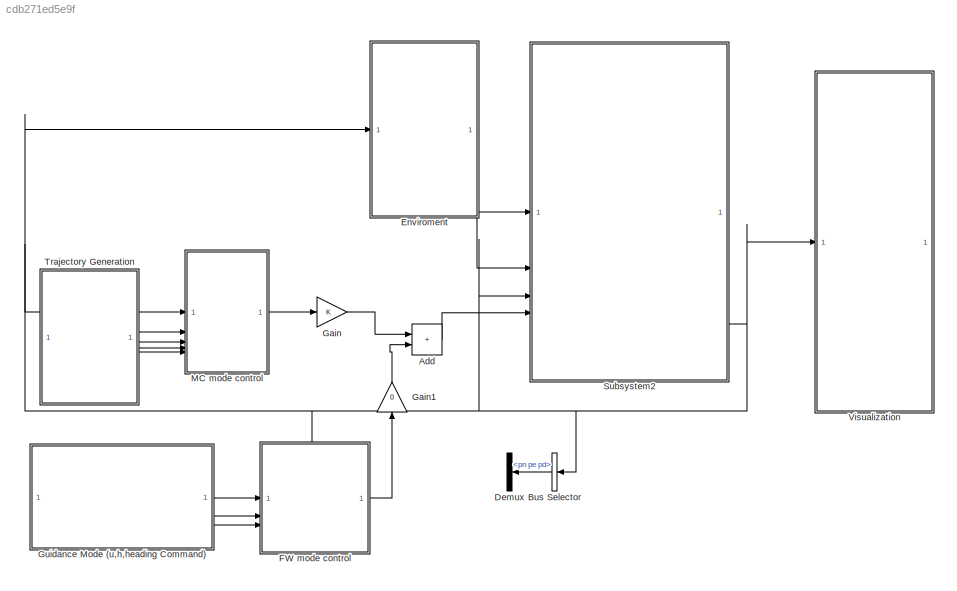
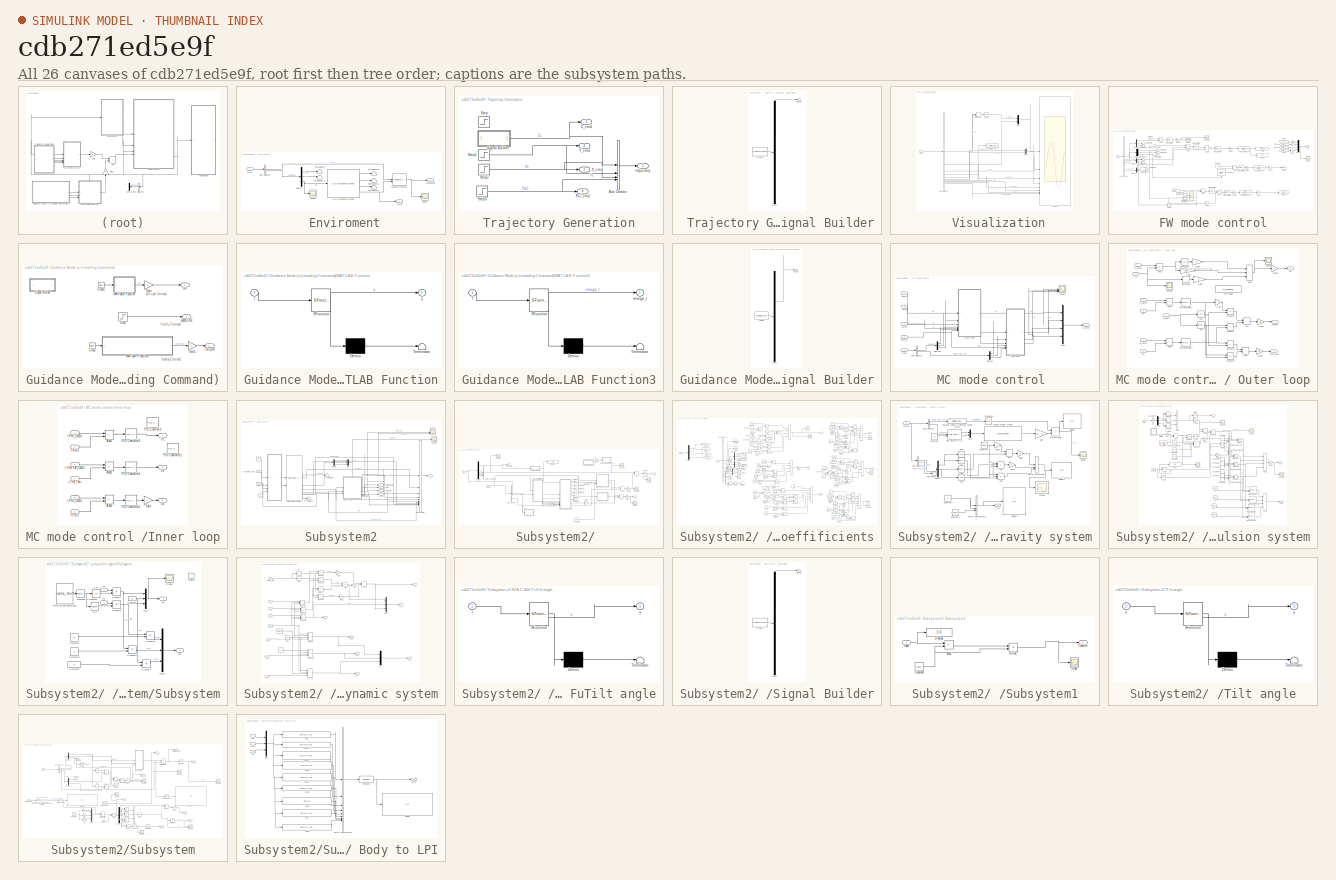
[diagram: thumbnail index - all 26 canvases of the model, root first then tree order]
MODEL slx_cdb271ed5e9f
KIND model
CONFIG AbsTol = auto
CONFIG EnableMultiTasking = off
CONFIG FixedStep = 0.001
CONFIG MaxStep = auto
CONFIG MinStep = auto
CONFIG RelTol = 1e-3
CONFIG SampleTimeConstraint = Unconstrained
CONFIG SolverName = ode4
CONFIG StartTime = 0.0
CONFIG StopTime = 100
BLOCK [SubSystem]  Enviroment
BLOCK [Outport]  Enviroment/ Qdynamic
  Port = 2
BLOCK [Outport]  Enviroment/ rho_air
BLOCK [Inport]  Enviroment/ state
BLOCK [BusSelector]  Enviroment/Bus Selector
  OutputSignals = V_t,pn pe pd
BLOCK [Demux]  Enviroment/Demux
  Outputs = 03
BLOCK [Reference]  Enviroment/Dynamic Pressure  REF=aerolibasang/Dynamic Pressure
  SourceBlock = aerolibasang/Dynamic Pressure
  SourceType = Dynamic Pressure
BLOCK [Reference]  Enviroment/ISA Atmosphere Model  REF=aerolibatmos2/ISA Atmosphere Model
  SourceBlock = aerolibatmos2/ISA Atmosphere Model
  SourceType = International Standard Atmosphere Model
BLOCK [Scope]  Enviroment/Scope
  Floating = off
  NumInputPorts = 1
  ScopeSpecificationString = Simulink.scopes.TimeScopeBlockCfg('CurrentConfiguration', extmgr.ConfigurationSet(extmgr.Configuration('Core','General UI',true),extmgr.Configuration('Core','Source UI',true),extmgr.Configuration('Sources','WiredSimulink',true,'DataLoggingVariableName','ScopeData4'),extmgr.Configuration('Visuals','Time Domain',true,'SerializedDisplays',{struct('MinYLimReal','5.25143','MaxYLimReal','25.25143','YLab...<+1450ch>
BLOCK [Scope]  Enviroment/Scope1
  Floating = off
  NumInputPorts = 1
  ScopeSpecificationString = Simulink.scopes.TimeScopeBlockCfg('CurrentConfiguration', extmgr.ConfigurationSet(extmgr.Configuration('Core','General UI',true),extmgr.Configuration('Core','Source UI',true),extmgr.Configuration('Sources','WiredSimulink',true,'DataLoggingVariableName','ScopeData2'),extmgr.Configuration('Visuals','Time Domain',true,'SerializedDisplays',{struct('MinYLimReal','-1762.53678','MaxYLimReal','15832.58822...<+1445ch>
BLOCK [Terminator]  Enviroment/Terminator
BLOCK [Terminator]  Enviroment/Terminator1
BLOCK [Terminator]  Enviroment/Terminator2
BLOCK [Terminator]  Enviroment/Terminator3
BLOCK [Terminator]  Enviroment/Terminator4
BLOCK [SubSystem]  Trajectory Generation 
BLOCK [Outport]  Trajectory Generation / Psi_cmd
  Port = 4
BLOCK [Outport]  Trajectory Generation / X_cmd
  Port = 3
BLOCK [BusCreator]  Trajectory Generation /Bus Creator
  DisplayOption = bar
  InheritFromInputs = on
  Inputs = 4
BLOCK [SubSystem]  Trajectory Generation /Signal Builder
  ClipboardFcn = sigbuilder_block('clipboard');
  CloseFcn = sigbuilder_block('close');
  ContinueFcn = sigbuilder_block('continue');
  CopyFcn = sigbuilder_block('copy');
  DeleteFcn = sigbuilder_block('delete');
  LoadFcn = sigbuilder_block('load');
  MaskHideContents = on
  ModelCloseFcn = sigbuilder_block('modelClose');
  NameChangeFcn = sigbuilder_block('namechange');
  OpenFcn = sigbuilder_block('open',[5.4 36 1141.2 519 ]);
  PauseFcn = sigbuilder_block('pause');
  PreSaveFcn = sigbuilder_block('preSave');
  StartFcn = sigbuilder_block('start');
  StopFcn = sigbuilder_block('stop');
  Tag = STV Subsys
BLOCK [Demux]  Trajectory Generation /Signal Builder/Demux
  DisplayOption = none
  Outputs = 1
  Tag = STV Demux
BLOCK [FromWorkspace]  Trajectory Generation /Signal Builder/FromWs
  Tag = STV FromWs
  VariableName = tuvar
BLOCK [Outport]  Trajectory Generation /Signal Builder/Signal 2
  Tag = STV Outport
BLOCK [Step]  Trajectory Generation /Step
  After = -20
  SampleTime = 0
  Time = 0
BLOCK [Step]  Trajectory Generation /Step1
  After = 0
  SampleTime = 0
  Time = 1
BLOCK [Step]  Trajectory Generation /Step2
  After = 0
  SampleTime = 0
  Time = 100
BLOCK [Step]  Trajectory Generation /Step3
  After = 0
  SampleTime = 0
  Time = 0
BLOCK [Outport]  Trajectory Generation /Y_cmd
  Port = 2
BLOCK [Outport]  Trajectory Generation /Z_cmd
BLOCK [Outport]  Trajectory Generation /trajectory
  Port = 5
BLOCK [SubSystem]  Visualization
BLOCK [Inport]  Visualization/ states
BLOCK [BusSelector]  Visualization/Bus Selector
  OutputSignals = V_t,Va,u v w,pn pe pd,Beta_rad,Alpha_rad,vn ve vd,Euler_ang_rad,p q r,pdot qdot rdot
BLOCK [DotProduct]  Visualization/Dot Product
  OutDataTypeStr = Inherit: Inherit via internal rule
BLOCK [Mux]  Visualization/Mux
  DisplayOption = bar
  Inputs = 2
BLOCK [Mux]  Visualization/Mux1
  DisplayOption = bar
  Inputs = 2
BLOCK [Scope]  Visualization/Scope
  Floating = off
  NumInputPorts = 8
  ScopeSpecificationString = Simulink.scopes.TimeScopeBlockCfg('CurrentConfiguration', extmgr.ConfigurationSet(extmgr.Configuration('Core','General UI',true),extmgr.Configuration('Core','Source UI',true),extmgr.Configuration('Sources','WiredSimulink',true,'DataLoggingVariableName','ScopeData8'),extmgr.Configuration('Visuals','Time Domain',true,'SerializedDisplays',{struct('MinYLimReal','-40825.21184','MaxYLimReal','367427.079...<+6843ch>
BLOCK [Sqrt]  Visualization/Sqrt
BLOCK [ToWorkspace]  Visualization/To Workspace
  FixptAsFi = on
  MaxDataPoints = inf
  SampleTime = -1
  VariableName = pe
BLOCK [Sum] Add
  IconShape = rectangular
BLOCK [BusSelector] Bus Selector
  NameLocation = top
  OutputSignals = pn pe pd
BLOCK [Demux] Demux
  NameLocation = top
  Outputs = 03
BLOCK [SubSystem] FW mode control
  PortSchema = {"entries":[{"content":{"sides":[{"content":{"connectorIds":["In1","In2","In3"]},"type":"ConnectorPlacement.EquallySpacedRectSide","uuid":"4545a291-7ce6-4acc-bac1-09d1d0d07bcb"},{"content":{"connectorIds":["Out1"],"side":"RIGHT"},"type":"ConnectorPlacement.EquallySpacedRectSide","uuid":"78faa3d7-77a6-4084-90ef-f7426e9a6bfc"},{"content":{"connectorIds":["In4"],"side":"TOP"},"type":"ConnectorPlaceme...<+257ch>
BLOCK [Inport] FW mode control/ altitude_hold_Cmd
BLOCK [Sum] FW mode control/Add
  IconShape = rectangular
  Inputs = +-
BLOCK [Sum] FW mode control/Add1
  IconShape = rectangular
  Inputs = +-
BLOCK [Sum] FW mode control/Add3
  IconShape = rectangular
  Inputs = +-
BLOCK [Sum] FW mode control/Add4
  IconShape = rectangular
  Inputs = +-
BLOCK [Sum] FW mode control/Add5
  IconShape = rectangular
  Inputs = +-
BLOCK [Sum] FW mode control/Add6
  IconShape = rectangular
  Inputs = +-
BLOCK [BusSelector] FW mode control/Bus Selector
  OutputSignals = u v w,p q r,Euler_ang_rad,vn ve vd
BLOCK [Constant] FW mode control/Constant
  Value = 0
BLOCK [Demux] FW mode control/Demux4
  Outputs = 03
BLOCK [Demux] FW mode control/Demux5
  Outputs = 03
BLOCK [Demux] FW mode control/Demux6
  Outputs = 03
BLOCK [Demux] FW mode control/Demux7
  Outputs = 03
BLOCK [Display] FW mode control/Display
  Decimation = 1
BLOCK [From] FW mode control/From
  GotoTag = delta_r
BLOCK [From] FW mode control/From1
  GotoTag = delta_a
BLOCK [From] FW mode control/From2
  GotoTag = delta_e
BLOCK [From] FW mode control/From3
  GotoTag = thottle
BLOCK [Gain] FW mode control/Gain
BLOCK [Gain] FW mode control/Gain1
  Gain = guidance_mode_on
BLOCK [Gain] FW mode control/Gain10
BLOCK [Gain] FW mode control/Gain3
BLOCK [Gain] FW mode control/Gain4
  Gain = guidance_mode_on
BLOCK [Gain] FW mode control/Gain5
  Gain = guidance_mode_on
BLOCK [Gain] FW mode control/Gain6
BLOCK [Gain] FW mode control/Gain7
BLOCK [Gain] FW mode control/Gain8
  Gain = 1
BLOCK [Gain] FW mode control/Gain9
BLOCK [Goto] FW mode control/Goto
  GotoTag = delta_e
BLOCK [Goto] FW mode control/Goto3
  GotoTag = thottle
BLOCK [Goto] FW mode control/Goto4
  GotoTag = delta_a
BLOCK [Goto] FW mode control/Goto5
  GotoTag = delta_r
BLOCK [Mux] FW mode control/Mux2
  DisplayOption = bar
  Inputs = 04
BLOCK [Reference] FW mode control/PID Controller  REF=slpidlib/PID Controller
  LibrarySourceBlock = simulink/Continuous/PID Controller
  SourceBlock = slpidlib/PID Controller
  SourceType = PID 1dof
BLOCK [Reference] FW mode control/PID Controller1  REF=slpidlib/PID Controller
  LibrarySourceBlock = simulink/Continuous/PID Controller
  SourceBlock = slpidlib/PID Controller
  SourceType = PID 1dof
BLOCK [Reference] FW mode control/PID Controller2  REF=slpidlib/PID Controller
  LibrarySourceBlock = simulink/Continuous/PID Controller
  SourceBlock = slpidlib/PID Controller
  SourceType = PID 1dof
BLOCK [Reference] FW mode control/PID Controller3  REF=slpidlib/PID Controller
  LibrarySourceBlock = simulink/Continuous/PID Controller
  SourceBlock = slpidlib/PID Controller
  SourceType = PID 1dof
BLOCK [Reference] FW mode control/PID Controller4  REF=slpidlib/PID Controller
  LibrarySourceBlock = simulink/Continuous/PID Controller
  SourceBlock = slpidlib/PID Controller
  SourceType = PID 1dof
BLOCK [Reference] FW mode control/PID Controller5  REF=slpidlib/PID Controller
  LibrarySourceBlock = simulink/Continuous/PID Controller
  SourceBlock = slpidlib/PID Controller
  SourceType = PID 1dof
BLOCK [Reference] FW mode control/Radians to Degrees2  REF=simulink_extras/Transformations/Radians
to Degrees
  SourceBlock = simulink_extras/Transformations/Radians\nto Degrees
  SourceType = RadiansToDegrees
BLOCK [Reference] FW mode control/Radians to Degrees3  REF=simulink_extras/Transformations/Radians
to Degrees
  SourceBlock = simulink_extras/Transformations/Radians\nto Degrees
  SourceType = RadiansToDegrees
BLOCK [Scope] FW mode control/Scope
  Floating = off
  NumInputPorts = 1
  ScopeSpecificationString = Simulink.scopes.TimeScopeBlockCfg('CurrentConfiguration', extmgr.ConfigurationSet(extmgr.Configuration('Core','General UI',true),extmgr.Configuration('Core','Source UI',true),extmgr.Configuration('Sources','WiredSimulink',true,'DataLoggingVariableName','ScopeData1'),extmgr.Configuration('Visuals','Time Domain',true,'SerializedDisplays',{struct('MinYLimReal','-252129670.76188','MaxYLimReal','282011...<+1616ch>
BLOCK [Scope] FW mode control/Scope1
  Floating = off
  NumInputPorts = 1
  ScopeSpecificationString = Simulink.scopes.TimeScopeBlockCfg('CurrentConfiguration', extmgr.ConfigurationSet(extmgr.Configuration('Core','General UI',true),extmgr.Configuration('Core','Source UI',true),extmgr.Configuration('Sources','WiredSimulink',true,'DataLoggingVariableName','ScopeData2'),extmgr.Configuration('Visuals','Time Domain',true,'SerializedDisplays',{struct('MinYLimReal','-455360010246136004608.00000','MaxYLimR...<+1551ch>
BLOCK [Scope] FW mode control/Scope4
  Floating = off
  NumInputPorts = 2
  ScopeSpecificationString = Simulink.scopes.TimeScopeBlockCfg('CurrentConfiguration', extmgr.ConfigurationSet(extmgr.Configuration('Core','General UI',true),extmgr.Configuration('Core','Source UI',true),extmgr.Configuration('Sources','WiredSimulink',true,'DataLoggingVariableName','ScopeData5'),extmgr.Configuration('Visuals','Time Domain',true,'SerializedDisplays',{struct('MinYLimReal','-1771.38942','MaxYLimReal','371.95708',...<+1491ch>
BLOCK [Terminator] FW mode control/Terminator1
BLOCK [Terminator] FW mode control/Terminator10
BLOCK [Terminator] FW mode control/Terminator2
BLOCK [Terminator] FW mode control/Terminator4
BLOCK [Terminator] FW mode control/Terminator5
BLOCK [Terminator] FW mode control/Terminator6
BLOCK [Terminator] FW mode control/Terminator7
BLOCK [Terminator] FW mode control/Terminator8
BLOCK [Terminator] FW mode control/Terminator9
BLOCK [TransferFcn] FW mode control/Transfer Fcn
  Commented = through
  Denominator = [0.1  1]
BLOCK [TransferFcn] FW mode control/Transfer Fcn1
  Denominator = [1  40]
  NameLocation = right
  Numerator = [1  0]
BLOCK [TransferFcn] FW mode control/Transfer Fcn2
  Commented = through
  Denominator = [0.1  1]
BLOCK [TransferFcn] FW mode control/Transfer Fcn3
  Commented = through
  Denominator = [0.1  1]
BLOCK [Inport] FW mode control/X
  Port = 4
BLOCK [Inport] FW mode control/phicmd
  Port = 3
BLOCK [Inport] FW mode control/speed
  Port = 2
BLOCK [Outport] FW mode control/ufw
BLOCK [Gain] Gain
BLOCK [Gain] Gain1
  Gain = 0
  NameLocation = right
BLOCK [SubSystem] Guidance Mode (u,h,heading Command)
BLOCK [Clock] Guidance Mode (u,h,heading Command)/Clock
BLOCK [Clock] Guidance Mode (u,h,heading Command)/Clock1
BLOCK [Gain] Guidance Mode (u,h,heading Command)/Gain
BLOCK [Gain] Guidance Mode (u,h,heading Command)/Gain1
  Gain = 1
BLOCK [Outport] Guidance Mode (u,h,heading Command)/Hc
BLOCK [SubSystem] Guidance Mode (u,h,heading Command)/MATLAB Function
  ErrorFcn = Stateflow.Translate.translate
  LibrarySourceBlock = simulink/User-Defined\nFunctions/MATLAB Function
  PermitHierarchicalResolution = ExplicitOnly
  SFBlockType = MATLAB Function
  TreatAsAtomicUnit = on
BLOCK [Demux] Guidance Mode (u,h,heading Command)/MATLAB Function/ Demux 
  Outputs = 1
BLOCK [S-Function] Guidance Mode (u,h,heading Command)/MATLAB Function/ SFunction 
  EnableBusSupport = on
  FunctionName = sf_sfun
  PortCounts = [1 2]
  SFcnIsStateOwnerBlock = off
  SFunctionDeploymentMode = off
  Tag = Stateflow S-Function 3
BLOCK [Terminator] Guidance Mode (u,h,heading Command)/MATLAB Function/ Terminator 
BLOCK [Inport] Guidance Mode (u,h,heading Command)/MATLAB Function/t
BLOCK [Outport] Guidance Mode (u,h,heading Command)/MATLAB Function/y
BLOCK [SubSystem] Guidance Mode (u,h,heading Command)/MATLAB Function3
  ErrorFcn = Stateflow.Translate.translate
  LibrarySourceBlock = simulink/User-Defined\nFunctions/MATLAB Function
  PermitHierarchicalResolution = ExplicitOnly
  SFBlockType = MATLAB Function
  TreatAsAtomicUnit = on
BLOCK [Demux] Guidance Mode (u,h,heading Command)/MATLAB Function3/ Demux 
  Outputs = 1
BLOCK [S-Function] Guidance Mode (u,h,heading Command)/MATLAB Function3/ SFunction 
  EnableBusSupport = on
  FunctionName = sf_sfun
  PortCounts = [1 2]
  SFcnIsStateOwnerBlock = off
  SFunctionDeploymentMode = off
  Tag = Stateflow S-Function 4
BLOCK [Terminator] Guidance Mode (u,h,heading Command)/MATLAB Function3/ Terminator 
BLOCK [Outport] Guidance Mode (u,h,heading Command)/MATLAB Function3/omega_t
BLOCK [Inport] Guidance Mode (u,h,heading Command)/MATLAB Function3/t
BLOCK [SubSystem] Guidance Mode (u,h,heading Command)/Signal Builder
  ClipboardFcn = sigbuilder_block('clipboard');
  CloseFcn = sigbuilder_block('close');
  ContinueFcn = sigbuilder_block('continue');
  CopyFcn = sigbuilder_block('copy');
  DeleteFcn = sigbuilder_block('delete');
  LoadFcn = sigbuilder_block('load');
  MaskHideContents = on
  ModelCloseFcn = sigbuilder_block('modelClose');
  NameChangeFcn = sigbuilder_block('namechange');
  OpenFcn = sigbuilder_block('open',[5.4 36 1141.2 516.6 ]);
  PauseFcn = sigbuilder_block('pause');
  PreSaveFcn = sigbuilder_block('preSave');
  StartFcn = sigbuilder_block('start');
  StopFcn = sigbuilder_block('stop');
  Tag = STV Subsys
BLOCK [Demux] Guidance Mode (u,h,heading Command)/Signal Builder/Demux
  DisplayOption = none
  Outputs = 1
  Tag = STV Demux
BLOCK [FromWorkspace] Guidance Mode (u,h,heading Command)/Signal Builder/FromWs
  Tag = STV FromWs
  VariableName = tuvar
BLOCK [Outport] Guidance Mode (u,h,heading Command)/Signal Builder/Signal 2
  Tag = STV Outport
BLOCK [Step] Guidance Mode (u,h,heading Command)/Step
  After = 20
  SampleTime = 0
  Time = 0
BLOCK [Outport] Guidance Mode (u,h,heading Command)/Turn_cmd
  Port = 3
BLOCK [Outport] Guidance Mode (u,h,heading Command)/speed_Cmd
  Port = 2
BLOCK [SubSystem] MC mode control 
BLOCK [SubSystem] MC mode control / Outer loop
BLOCK [Outport] MC mode control / Outer loop/  U1
BLOCK [Inport] MC mode control / Outer loop/ <Y_CMD>
  Port = 3
BLOCK [Outport] MC mode control / Outer loop/ phi_des
  Port = 2
BLOCK [Outport] MC mode control / Outer loop/ theta_des
  Port = 3
BLOCK [Constant] MC mode control / Outer loop/ trim value
  Value = m_plane*g
BLOCK [Inport] MC mode control / Outer loop/< Z>
  Port = 2
BLOCK [Inport] MC mode control / Outer loop/< Z_CMD>
BLOCK [Inport] MC mode control / Outer loop/<X>
  Port = 6
BLOCK [Inport] MC mode control / Outer loop/<X_CMD>
  Port = 5
BLOCK [Inport] MC mode control / Outer loop/<Y>
  Port = 4
BLOCK [Sum] MC mode control / Outer loop/Add
  IconShape = rectangular
BLOCK [Sum] MC mode control / Outer loop/Add1
  IconShape = rectangular
  Inputs = +-
BLOCK [Sum] MC mode control / Outer loop/Add2
  IconShape = rectangular
  Inputs = +-
BLOCK [Sum] MC mode control / Outer loop/Add3
  IconShape = rectangular
  Inputs = +-
BLOCK [Sum] MC mode control / Outer loop/Add4
  IconShape = rectangular
BLOCK [Sum] MC mode control / Outer loop/Add5
  IconShape = rectangular
  Inputs = +++
BLOCK [Trigonometry] MC mode control / Outer loop/Cos
  Operator = cos
BLOCK [Derivative] MC mode control / Outer loop/Derivative
BLOCK [Gain] MC mode control / Outer loop/Gain
  Gain = -1
BLOCK [Gain] MC mode control / Outer loop/Gain1
  Gain = 1/g
BLOCK [Gain] MC mode control / Outer loop/Gain2
  Gain = 1/g
BLOCK [Gain] MC mode control / Outer loop/Gain3
  Gain = 600
BLOCK [Gain] MC mode control / Outer loop/Gain4
  Gain = 2
BLOCK [Gain] MC mode control / Outer loop/Gain5
  Gain = -2
BLOCK [Gain] MC mode control / Outer loop/Gain6
BLOCK [Integrator] MC mode control / Outer loop/Integrator
BLOCK [Reference] MC mode control / Outer loop/PID Controller1  REF=slpidlib/PID Controller
  SourceBlock = slpidlib/PID Controller
  SourceType = PID 1dof
BLOCK [Reference] MC mode control / Outer loop/PID Controller2  REF=slpidlib/PID Controller
  SourceBlock = slpidlib/PID Controller
  SourceType = PID 1dof
BLOCK [Product] MC mode control / Outer loop/Product
BLOCK [Product] MC mode control / Outer loop/Product1
BLOCK [Product] MC mode control / Outer loop/Product2
BLOCK [Product] MC mode control / Outer loop/Product3
BLOCK [Scope] MC mode control / Outer loop/Scope
  Floating = off
  NumInputPorts = 1
  ScopeSpecificationString = Simulink.scopes.TimeScopeBlockCfg('CurrentConfiguration', extmgr.ConfigurationSet(extmgr.Configuration('Core','General UI',true),extmgr.Configuration('Core','Source UI',true),extmgr.Configuration('Sources','WiredSimulink',true,'DataLoggingVariableName','ScopeData2'),extmgr.Configuration('Visuals','Time Domain',true,'SerializedDisplays',{struct('MinYLimReal','-13562.50499','MaxYLimReal','1913.54917...<+1464ch>
BLOCK [Scope] MC mode control / Outer loop/Scope1
  Floating = off
  NumInputPorts = 1
  ScopeSpecificationString = Simulink.scopes.TimeScopeBlockCfg('CurrentConfiguration', extmgr.ConfigurationSet(extmgr.Configuration('Core','General UI',true),extmgr.Configuration('Core','Source UI',true),extmgr.Configuration('Sources','WiredSimulink',true,'DataLoggingVariableName','ScopeData9'),extmgr.Configuration('Visuals','Time Domain',true,'SerializedDisplays',{struct('MinYLimReal','-1762.53678','MaxYLimReal','15832.58822...<+1414ch>
BLOCK [Trigonometry] MC mode control / Outer loop/Sin
BLOCK [Inport] MC mode control / Outer loop/psi_des
  Port = 7
BLOCK [Inport] MC mode control / Xcmd
  Port = 4
BLOCK [Inport] MC mode control / Zcmd
  Port = 2
BLOCK [BusSelector] MC mode control /Bus Selector
  OutputSignals = pn pe pd,Euler_ang_rad
BLOCK [Demux] MC mode control /Demux
  Outputs = 3
BLOCK [Demux] MC mode control /Demux1
  Outputs = 3
BLOCK [SubSystem] MC mode control /Inner loop
BLOCK [Inport] MC mode control /Inner loop/ <PHI_CMD>
BLOCK [Inport] MC mode control /Inner loop/ <THETA_CMD>
  Port = 3
BLOCK [Outport] MC mode control /Inner loop/ U2
BLOCK [Inport] MC mode control /Inner loop/<PHI>
  Port = 2
BLOCK [Inport] MC mode control /Inner loop/<PSI>
  Port = 6
BLOCK [Inport] MC mode control /Inner loop/<PSI_CMD>
  Port = 5
BLOCK [Inport] MC mode control /Inner loop/<THETA>
  Port = 4
BLOCK [Sum] MC mode control /Inner loop/Add1
  IconShape = rectangular
  Inputs = +-
BLOCK [Sum] MC mode control /Inner loop/Add2
  IconShape = rectangular
  Inputs = +-
BLOCK [Sum] MC mode control /Inner loop/Add3
  IconShape = rectangular
  Inputs = +-
BLOCK [Gain] MC mode control /Inner loop/Gain
BLOCK [Reference] MC mode control /Inner loop/PID Controller  REF=slpidlib/PID Controller
  LibrarySourceBlock = simulink/Continuous/PID Controller
  SourceBlock = slpidlib/PID Controller
  SourceType = PID 1dof
BLOCK [Reference] MC mode control /Inner loop/PID Controller1  REF=slpidlib/PID Controller
  SourceBlock = slpidlib/PID Controller
  SourceType = PID 1dof
BLOCK [Reference] MC mode control /Inner loop/PID Controller2  REF=slpidlib/PID Controller
  SourceBlock = slpidlib/PID Controller
  SourceType = PID 1dof
BLOCK [Reference] MC mode control /Inner loop/PID Controller3  REF=slpidlib/PID Controller
  LibrarySourceBlock = simulink/Continuous/PID Controller
  SourceBlock = slpidlib/PID Controller
  SourceType = PID 1dof
BLOCK [Reference] MC mode control /Inner loop/PID Controller4  REF=slpidlib/PID Controller
  LibrarySourceBlock = simulink/Continuous/PID Controller
  SourceBlock = slpidlib/PID Controller
  SourceType = PID 1dof
BLOCK [Outport] MC mode control /Inner loop/U3
  Port = 2
BLOCK [Outport] MC mode control /Inner loop/U4
  Port = 3
BLOCK [Mux] MC mode control /Mux
  DisplayOption = bar
  Inputs = 04
BLOCK [Inport] MC mode control /Psi_cmd
  Port = 5
BLOCK [Scope] MC mode control /Scope
  Floating = off
  NumInputPorts = 4
  ScopeSpecificationString = Simulink.scopes.TimeScopeBlockCfg('CurrentConfiguration', extmgr.ConfigurationSet(extmgr.Configuration('Core','General UI',true),extmgr.Configuration('Core','Source UI',true),extmgr.Configuration('Sources','WiredSimulink',true,'DataLoggingVariableName','ScopeData7'),extmgr.Configuration('Visuals','Time Domain',true,'SerializedDisplays',{struct('MinYLimReal','-13348.66534','MaxYLimReal','1889.79061...<+1566ch>
BLOCK [Inport] MC mode control /Ycmd
  Port = 3
BLOCK [Inport] MC mode control /state
BLOCK [Outport] MC mode control /u_rotor
BLOCK [SubSystem] Subsystem2
BLOCK [SubSystem] Subsystem2/ 
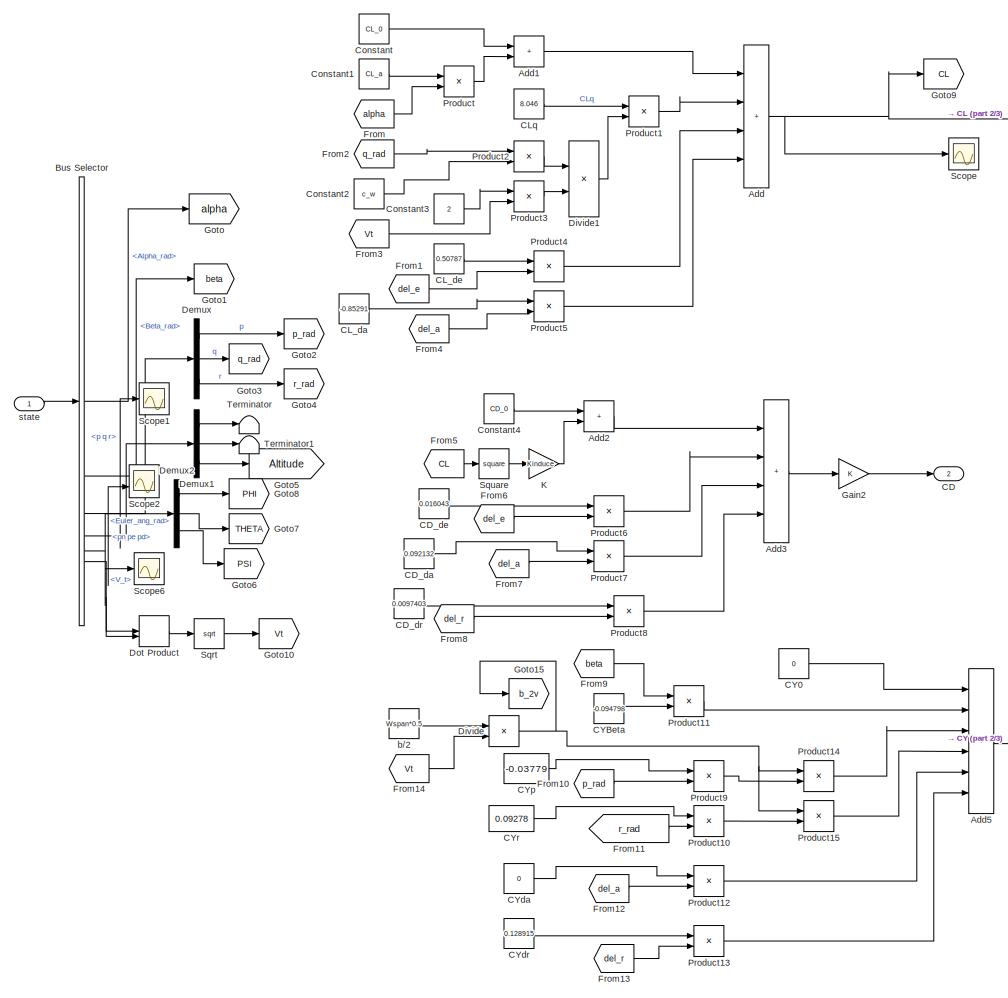
[diagram: Subsystem2/ / Aero_Coeffificients - part 1/3, center side, full height]
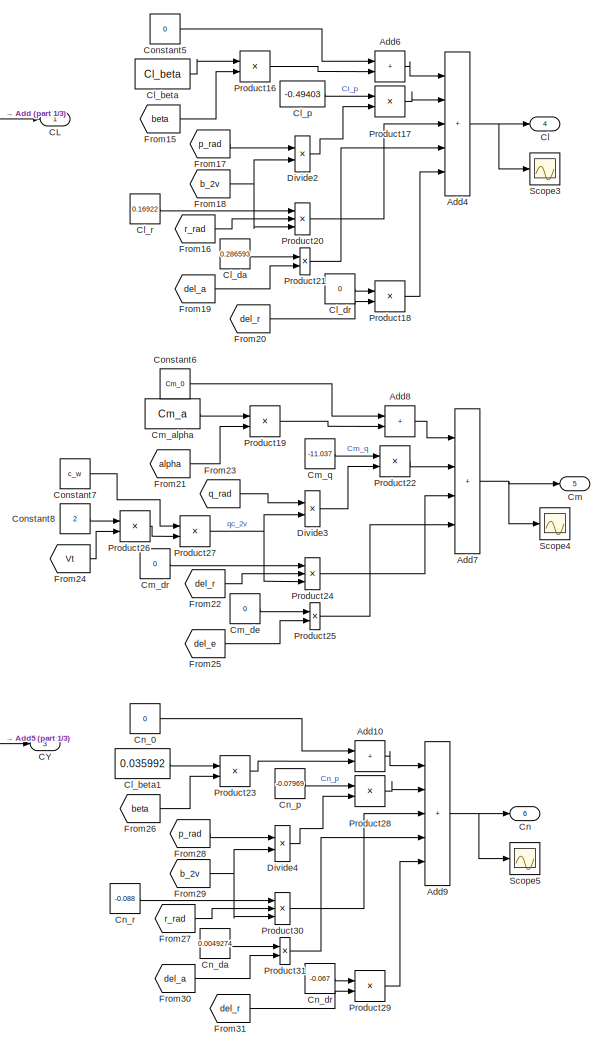
[diagram: Subsystem2/ / Aero_Coeffificients - part 2/3, right side, full height]
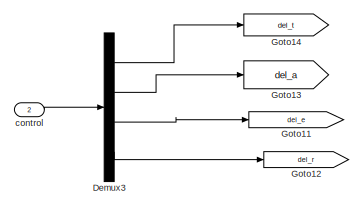
[diagram: Subsystem2/ / Aero_Coeffificients - part 3/3, top left region]
BLOCK [SubSystem] Subsystem2/ / Aero_Coeffificients
BLOCK [Outport] Subsystem2/ / Aero_Coeffificients/  Cl
  Port = 4
BLOCK [Outport] Subsystem2/ / Aero_Coeffificients/  Cm
  Port = 5
BLOCK [Outport] Subsystem2/ / Aero_Coeffificients/ CD
  Port = 2
BLOCK [Constant] Subsystem2/ / Aero_Coeffificients/ CD_da
  Value = 0.092132
BLOCK [Constant] Subsystem2/ / Aero_Coeffificients/ CD_de
  Value = 0.016043
BLOCK [Constant] Subsystem2/ / Aero_Coeffificients/ CD_dr
  Value = 0.0097403
BLOCK [Outport] Subsystem2/ / Aero_Coeffificients/ CL
BLOCK [Constant] Subsystem2/ / Aero_Coeffificients/ CL_da
  Value = -0.85291
BLOCK [Constant] Subsystem2/ / Aero_Coeffificients/ CL_de
  Value = 0.50787
BLOCK [Constant] Subsystem2/ / Aero_Coeffificients/ CLq
  Value = 8.046
BLOCK [Outport] Subsystem2/ / Aero_Coeffificients/ CY
  Port = 3
BLOCK [Constant] Subsystem2/ / Aero_Coeffificients/ CY0
  Value = 0
BLOCK [Constant] Subsystem2/ / Aero_Coeffificients/ CYda
  Value = 0
BLOCK [Constant] Subsystem2/ / Aero_Coeffificients/ CYdr
  Value = 0.128915
BLOCK [Constant] Subsystem2/ / Aero_Coeffificients/ CYp
  Value = -0.03779
BLOCK [Constant] Subsystem2/ / Aero_Coeffificients/ CYr
  Value = 0.09278
BLOCK [Constant] Subsystem2/ / Aero_Coeffificients/ Cl_beta
  Value = Cl_beta
BLOCK [Constant] Subsystem2/ / Aero_Coeffificients/ Cl_beta1
  Value = 0.035992
BLOCK [Constant] Subsystem2/ / Aero_Coeffificients/ Cl_da
  Value = 0.286593
BLOCK [Constant] Subsystem2/ / Aero_Coeffificients/ Cl_dr
  Value = 0
BLOCK [Constant] Subsystem2/ / Aero_Coeffificients/ Cl_p
  Value = -0.49403
BLOCK [Constant] Subsystem2/ / Aero_Coeffificients/ Cl_r
  Value = 0.16922
BLOCK [Constant] Subsystem2/ / Aero_Coeffificients/ Cm_alpha
  Value = Cm_a
BLOCK [Constant] Subsystem2/ / Aero_Coeffificients/ Cm_de
  Value = 0
BLOCK [Constant] Subsystem2/ / Aero_Coeffificients/ Cm_dr
  Value = 0
BLOCK [Constant] Subsystem2/ / Aero_Coeffificients/ Cm_q
  Value = -11.037
BLOCK [Outport] Subsystem2/ / Aero_Coeffificients/ Cn
  Port = 6
BLOCK [Constant] Subsystem2/ / Aero_Coeffificients/ Cn_0
  Value = 0
BLOCK [Constant] Subsystem2/ / Aero_Coeffificients/ Cn_da
  Value = 0.0049274
BLOCK [Constant] Subsystem2/ / Aero_Coeffificients/ Cn_dr
  Value = -0.067
BLOCK [Constant] Subsystem2/ / Aero_Coeffificients/ Cn_p
  Value = -0.07969
BLOCK [Constant] Subsystem2/ / Aero_Coeffificients/ Cn_r
  Value = -0.088
BLOCK [Constant] Subsystem2/ / Aero_Coeffificients/ b//2
  Value = Wspan*0.5
BLOCK [Inport] Subsystem2/ / Aero_Coeffificients/ control
  Port = 2
BLOCK [Inport] Subsystem2/ / Aero_Coeffificients/ state
BLOCK [Sum] Subsystem2/ / Aero_Coeffificients/Add
  IconShape = rectangular
  Inputs = ++++
BLOCK [Sum] Subsystem2/ / Aero_Coeffificients/Add1
  IconShape = rectangular
BLOCK [Sum] Subsystem2/ / Aero_Coeffificients/Add10
  IconShape = rectangular
BLOCK [Sum] Subsystem2/ / Aero_Coeffificients/Add2
  IconShape = rectangular
BLOCK [Sum] Subsystem2/ / Aero_Coeffificients/Add3
  IconShape = rectangular
  Inputs = ++++
BLOCK [Sum] Subsystem2/ / Aero_Coeffificients/Add4
  IconShape = rectangular
  Inputs = +++++
BLOCK [Sum] Subsystem2/ / Aero_Coeffificients/Add5
  IconShape = rectangular
  Inputs = ++++++
BLOCK [Sum] Subsystem2/ / Aero_Coeffificients/Add6
  IconShape = rectangular
BLOCK [Sum] Subsystem2/ / Aero_Coeffificients/Add7
  IconShape = rectangular
  Inputs = ++++
BLOCK [Sum] Subsystem2/ / Aero_Coeffificients/Add8
  IconShape = rectangular
BLOCK [Sum] Subsystem2/ / Aero_Coeffificients/Add9
  IconShape = rectangular
  Inputs = +++++
BLOCK [BusSelector] Subsystem2/ / Aero_Coeffificients/Bus Selector
  OutputSignals = Alpha_rad,Beta_rad,p q r,pn pe pd,Euler_ang_rad,V_t
BLOCK [Constant] Subsystem2/ / Aero_Coeffificients/CYBeta
  Value = -0.094798
BLOCK [Constant] Subsystem2/ / Aero_Coeffificients/Constant
  Value = CL_0
BLOCK [Constant] Subsystem2/ / Aero_Coeffificients/Constant1
  Value = CL_a
BLOCK [Constant] Subsystem2/ / Aero_Coeffificients/Constant2
  Value = c_w
BLOCK [Constant] Subsystem2/ / Aero_Coeffificients/Constant3
  Value = 2
BLOCK [Constant] Subsystem2/ / Aero_Coeffificients/Constant4
  Value = CD_0
BLOCK [Constant] Subsystem2/ / Aero_Coeffificients/Constant5
  Value = 0
BLOCK [Constant] Subsystem2/ / Aero_Coeffificients/Constant6
  Value = Cm_0
BLOCK [Constant] Subsystem2/ / Aero_Coeffificients/Constant7
  Value = c_w
BLOCK [Constant] Subsystem2/ / Aero_Coeffificients/Constant8
  Value = 2
BLOCK [Demux] Subsystem2/ / Aero_Coeffificients/Demux
  Outputs = 03
BLOCK [Demux] Subsystem2/ / Aero_Coeffificients/Demux1
  Outputs = 03
BLOCK [Demux] Subsystem2/ / Aero_Coeffificients/Demux2
  Outputs = 03
BLOCK [Demux] Subsystem2/ / Aero_Coeffificients/Demux3
  Outputs = 04
BLOCK [Product] Subsystem2/ / Aero_Coeffificients/Divide
  Inputs = */
BLOCK [Product] Subsystem2/ / Aero_Coeffificients/Divide1
  Inputs = */
BLOCK [Product] Subsystem2/ / Aero_Coeffificients/Divide2
  Inputs = **
BLOCK [Product] Subsystem2/ / Aero_Coeffificients/Divide3
  Inputs = **
BLOCK [Product] Subsystem2/ / Aero_Coeffificients/Divide4
  Inputs = **
BLOCK [DotProduct] Subsystem2/ / Aero_Coeffificients/Dot Product
  OutDataTypeStr = Inherit: Inherit via internal rule
BLOCK [From] Subsystem2/ / Aero_Coeffificients/From
  GotoTag = alpha
BLOCK [From] Subsystem2/ / Aero_Coeffificients/From1
  GotoTag = del_e
BLOCK [From] Subsystem2/ / Aero_Coeffificients/From10
  GotoTag = p_rad
BLOCK [From] Subsystem2/ / Aero_Coeffificients/From11
  GotoTag = r_rad
BLOCK [From] Subsystem2/ / Aero_Coeffificients/From12
  GotoTag = del_a
BLOCK [From] Subsystem2/ / Aero_Coeffificients/From13
  GotoTag = del_r
BLOCK [From] Subsystem2/ / Aero_Coeffificients/From14
  GotoTag = Vt
BLOCK [From] Subsystem2/ / Aero_Coeffificients/From15
  GotoTag = beta
BLOCK [From] Subsystem2/ / Aero_Coeffificients/From16
  GotoTag = r_rad
BLOCK [From] Subsystem2/ / Aero_Coeffificients/From17
  GotoTag = p_rad
BLOCK [From] Subsystem2/ / Aero_Coeffificients/From18
  GotoTag = b_2v
BLOCK [From] Subsystem2/ / Aero_Coeffificients/From19
  GotoTag = del_a
BLOCK [From] Subsystem2/ / Aero_Coeffificients/From2
  GotoTag = q_rad
BLOCK [From] Subsystem2/ / Aero_Coeffificients/From20
  GotoTag = del_r
BLOCK [From] Subsystem2/ / Aero_Coeffificients/From21
  GotoTag = alpha
BLOCK [From] Subsystem2/ / Aero_Coeffificients/From22
  GotoTag = del_r
BLOCK [From] Subsystem2/ / Aero_Coeffificients/From23
  GotoTag = q_rad
BLOCK [From] Subsystem2/ / Aero_Coeffificients/From24
  GotoTag = Vt
BLOCK [From] Subsystem2/ / Aero_Coeffificients/From25
  GotoTag = del_e
BLOCK [From] Subsystem2/ / Aero_Coeffificients/From26
  GotoTag = beta
BLOCK [From] Subsystem2/ / Aero_Coeffificients/From27
  GotoTag = r_rad
BLOCK [From] Subsystem2/ / Aero_Coeffificients/From28
  GotoTag = p_rad
BLOCK [From] Subsystem2/ / Aero_Coeffificients/From29
  GotoTag = b_2v
BLOCK [From] Subsystem2/ / Aero_Coeffificients/From3
  GotoTag = Vt
BLOCK [From] Subsystem2/ / Aero_Coeffificients/From30
  GotoTag = del_a
BLOCK [From] Subsystem2/ / Aero_Coeffificients/From31
  GotoTag = del_r
BLOCK [From] Subsystem2/ / Aero_Coeffificients/From4
  GotoTag = del_a
BLOCK [From] Subsystem2/ / Aero_Coeffificients/From5
  GotoTag = CL
BLOCK [From] Subsystem2/ / Aero_Coeffificients/From6
  GotoTag = del_e
BLOCK [From] Subsystem2/ / Aero_Coeffificients/From7
  GotoTag = del_a
BLOCK [From] Subsystem2/ / Aero_Coeffificients/From8
  GotoTag = del_r
BLOCK [From] Subsystem2/ / Aero_Coeffificients/From9
  GotoTag = beta
BLOCK [Gain] Subsystem2/ / Aero_Coeffificients/Gain2
BLOCK [Goto] Subsystem2/ / Aero_Coeffificients/Goto
  GotoTag = alpha
BLOCK [Goto] Subsystem2/ / Aero_Coeffificients/Goto1
  GotoTag = beta
BLOCK [Goto] Subsystem2/ / Aero_Coeffificients/Goto10
  GotoTag = Vt
BLOCK [Goto] Subsystem2/ / Aero_Coeffificients/Goto11
  GotoTag = del_e
BLOCK [Goto] Subsystem2/ / Aero_Coeffificients/Goto12
  GotoTag = del_r
BLOCK [Goto] Subsystem2/ / Aero_Coeffificients/Goto13
  GotoTag = del_a
BLOCK [Goto] Subsystem2/ / Aero_Coeffificients/Goto14
  GotoTag = del_t
BLOCK [Goto] Subsystem2/ / Aero_Coeffificients/Goto15
  GotoTag = b_2v
BLOCK [Goto] Subsystem2/ / Aero_Coeffificients/Goto2
  GotoTag = p_rad
BLOCK [Goto] Subsystem2/ / Aero_Coeffificients/Goto3
  GotoTag = q_rad
BLOCK [Goto] Subsystem2/ / Aero_Coeffificients/Goto4
  GotoTag = r_rad
BLOCK [Goto] Subsystem2/ / Aero_Coeffificients/Goto5
  GotoTag = Altitude
BLOCK [Goto] Subsystem2/ / Aero_Coeffificients/Goto6
  GotoTag = PSI
BLOCK [Goto] Subsystem2/ / Aero_Coeffificients/Goto7
  GotoTag = THETA
BLOCK [Goto] Subsystem2/ / Aero_Coeffificients/Goto8
  GotoTag = PHI
BLOCK [Goto] Subsystem2/ / Aero_Coeffificients/Goto9
  GotoTag = CL
BLOCK [Gain] Subsystem2/ / Aero_Coeffificients/K
  Gain = Kinduce
BLOCK [Product] Subsystem2/ / Aero_Coeffificients/Product
BLOCK [Product] Subsystem2/ / Aero_Coeffificients/Product1
BLOCK [Product] Subsystem2/ / Aero_Coeffificients/Product10
BLOCK [Product] Subsystem2/ / Aero_Coeffificients/Product11
BLOCK [Product] Subsystem2/ / Aero_Coeffificients/Product12
BLOCK [Product] Subsystem2/ / Aero_Coeffificients/Product13
BLOCK [Product] Subsystem2/ / Aero_Coeffificients/Product14
BLOCK [Product] Subsystem2/ / Aero_Coeffificients/Product15
BLOCK [Product] Subsystem2/ / Aero_Coeffificients/Product16
BLOCK [Product] Subsystem2/ / Aero_Coeffificients/Product17
BLOCK [Product] Subsystem2/ / Aero_Coeffificients/Product18
BLOCK [Product] Subsystem2/ / Aero_Coeffificients/Product19
BLOCK [Product] Subsystem2/ / Aero_Coeffificients/Product2
BLOCK [Product] Subsystem2/ / Aero_Coeffificients/Product20
  Inputs = 3
BLOCK [Product] Subsystem2/ / Aero_Coeffificients/Product21
BLOCK [Product] Subsystem2/ / Aero_Coeffificients/Product22
BLOCK [Product] Subsystem2/ / Aero_Coeffificients/Product23
BLOCK [Product] Subsystem2/ / Aero_Coeffificients/Product24
  Inputs = 3
BLOCK [Product] Subsystem2/ / Aero_Coeffificients/Product25
BLOCK [Product] Subsystem2/ / Aero_Coeffificients/Product26
BLOCK [Product] Subsystem2/ / Aero_Coeffificients/Product27
  Inputs = */
BLOCK [Product] Subsystem2/ / Aero_Coeffificients/Product28
BLOCK [Product] Subsystem2/ / Aero_Coeffificients/Product29
BLOCK [Product] Subsystem2/ / Aero_Coeffificients/Product3
BLOCK [Product] Subsystem2/ / Aero_Coeffificients/Product30
  Inputs = 3
BLOCK [Product] Subsystem2/ / Aero_Coeffificients/Product31
BLOCK [Product] Subsystem2/ / Aero_Coeffificients/Product4
BLOCK [Product] Subsystem2/ / Aero_Coeffificients/Product5
BLOCK [Product] Subsystem2/ / Aero_Coeffificients/Product6
BLOCK [Product] Subsystem2/ / Aero_Coeffificients/Product7
BLOCK [Product] Subsystem2/ / Aero_Coeffificients/Product8
BLOCK [Product] Subsystem2/ / Aero_Coeffificients/Product9
BLOCK [Scope] Subsystem2/ / Aero_Coeffificients/Scope
  Floating = off
  NumInputPorts = 1
  ScopeSpecificationString = Simulink.scopes.TimeScopeBlockCfg('CurrentConfiguration', extmgr.ConfigurationSet(extmgr.Configuration('Core','General UI',true),extmgr.Configuration('Core','Source UI',true),extmgr.Configuration('Sources','WiredSimulink',true,'DataLoggingVariableName','ScopeData5'),extmgr.Configuration('Visuals','Time Domain',true,'SerializedDisplays',{struct('MinYLimReal','-35.61838','MaxYLimReal','4.69717','YLa...<+1442ch>
BLOCK [Scope] Subsystem2/ / Aero_Coeffificients/Scope1
  Floating = off
  NumInputPorts = 1
  ScopeSpecificationString = Simulink.scopes.TimeScopeBlockCfg('CurrentConfiguration', extmgr.ConfigurationSet(extmgr.Configuration('Core','General UI',true),extmgr.Configuration('Core','Source UI',true),extmgr.Configuration('Sources','WiredSimulink',true,'DataLoggingVariableName','ScopeData6'),extmgr.Configuration('Visuals','Time Domain',true,'SerializedDisplays',{struct('MinYLimReal','-22452.43407','MaxYLimReal','25796.5797...<+1561ch>
BLOCK [Scope] Subsystem2/ / Aero_Coeffificients/Scope2
  Floating = off
  NumInputPorts = 2
  ScopeSpecificationString = Simulink.scopes.TimeScopeBlockCfg('CurrentConfiguration', extmgr.ConfigurationSet(extmgr.Configuration('Core','General UI',true),extmgr.Configuration('Core','Source UI',true),extmgr.Configuration('Sources','WiredSimulink',true,'DataLoggingVariableName','ScopeData7'),extmgr.Configuration('Visuals','Time Domain',true,'SerializedDisplays',{struct('MinYLimReal','-217.31013','MaxYLimReal','965.9066','Y...<+1586ch>
BLOCK [Scope] Subsystem2/ / Aero_Coeffificients/Scope3
  Floating = off
  NumInputPorts = 1
  ScopeSpecificationString = Simulink.scopes.TimeScopeBlockCfg('CurrentConfiguration', extmgr.ConfigurationSet(extmgr.Configuration('Core','General UI',true),extmgr.Configuration('Core','Source UI',true),extmgr.Configuration('Sources','WiredSimulink',true,'DataLoggingVariableName','ScopeData9'),extmgr.Configuration('Visuals','Time Domain',true,'SerializedDisplays',{struct('MinYLimReal','-3087126.45086','MaxYLimReal','27783904...<+1490ch>
BLOCK [Scope] Subsystem2/ / Aero_Coeffificients/Scope4
  Floating = off
  NumInputPorts = 1
  ScopeSpecificationString = Simulink.scopes.TimeScopeBlockCfg('CurrentConfiguration', extmgr.ConfigurationSet(extmgr.Configuration('Core','General UI',true),extmgr.Configuration('Core','Source UI',true),extmgr.Configuration('Sources','WiredSimulink',true,'DataLoggingVariableName','ScopeData10'),extmgr.Configuration('Visuals','Time Domain',true,'SerializedDisplays',{struct('MinYLimReal','-252.00258','MaxYLimReal','143.56727',...<+1455ch>
BLOCK [Scope] Subsystem2/ / Aero_Coeffificients/Scope5
  Floating = off
  NumInputPorts = 1
  ScopeSpecificationString = Simulink.scopes.TimeScopeBlockCfg('CurrentConfiguration', extmgr.ConfigurationSet(extmgr.Configuration('Core','General UI',true),extmgr.Configuration('Core','Source UI',true),extmgr.Configuration('Sources','WiredSimulink',true,'DataLoggingVariableName','ScopeData11'),extmgr.Configuration('Visuals','Time Domain',true,'SerializedDisplays',{struct('MinYLimReal','-53077.334','MaxYLimReal','477689.3033...<+1471ch>
BLOCK [Scope] Subsystem2/ / Aero_Coeffificients/Scope6
  Floating = off
  NumInputPorts = 1
  ScopeSpecificationString = Simulink.scopes.TimeScopeBlockCfg('CurrentConfiguration', extmgr.ConfigurationSet(extmgr.Configuration('Core','General UI',true),extmgr.Configuration('Core','Source UI',true),extmgr.Configuration('Sources','WiredSimulink',true,'DataLoggingVariableName','ScopeData12'),extmgr.Configuration('Visuals','Time Domain',true,'SerializedDisplays',{struct('MinYLimReal','-0.00023','MaxYLimReal','0.00072','YLa...<+1556ch>
BLOCK [Sqrt] Subsystem2/ / Aero_Coeffificients/Sqrt
BLOCK [Math] Subsystem2/ / Aero_Coeffificients/Square
  Operator = square
BLOCK [Terminator] Subsystem2/ / Aero_Coeffificients/Terminator
BLOCK [Terminator] Subsystem2/ / Aero_Coeffificients/Terminator1
BLOCK [Outport] Subsystem2/ / M
  Port = 2
BLOCK [Inport] Subsystem2/ / Rho_air
BLOCK [SubSystem] Subsystem2/ / gravity system
BLOCK [Product] Subsystem2/ / gravity system/ Fgy
  Inputs = 3
BLOCK [Product] Subsystem2/ / gravity system/ Fgz
  Inputs = 03
BLOCK [BusSelector] Subsystem2/ / gravity system/Bus Selector
  OutputSignals = Euler_ang_rad,pn pe pd
BLOCK [BusSelector] Subsystem2/ / gravity system/Bus Selector1
  OutputSignals = Euler_ang_rad,p q r
BLOCK [Constant] Subsystem2/ / gravity system/Constant
  Value = 0
BLOCK [Constant] Subsystem2/ / gravity system/Constant1
  Value = m_plane*g
BLOCK [Constant] Subsystem2/ / gravity system/Constant3
  Value = m_plane*g
BLOCK [Constant] Subsystem2/ / gravity system/Constant4
  Value = 0
BLOCK [Trigonometry] Subsystem2/ / gravity system/Cos
  Operator = cos
BLOCK [Trigonometry] Subsystem2/ / gravity system/Cos1
  Operator = cos
BLOCK [Demux] Subsystem2/ / gravity system/Demux
  Outputs = 03
BLOCK [Display] Subsystem2/ / gravity system/Display
  Decimation = 1
BLOCK [Display] Subsystem2/ / gravity system/Display1
  Decimation = 1
BLOCK [Display] Subsystem2/ / gravity system/Display2
  Decimation = 1
BLOCK [Outport] Subsystem2/ / gravity system/F_g
BLOCK [Product] Subsystem2/ / gravity system/Fgx
BLOCK [Reference] Subsystem2/ / gravity system/Flat Earth to LLA  REF=aerolibtransform2/Flat Earth to LLA
  SourceBlock = aerolibtransform2/Flat Earth to LLA
  SourceType = Flat Earth to LLA
BLOCK [Gain] Subsystem2/ / gravity system/Gain
  Gain = [0 ; 0; 1]
BLOCK [Gain] Subsystem2/ / gravity system/Gain1
  Gain = -1
BLOCK [Gain] Subsystem2/ / gravity system/Gain2
  Gain = 0
BLOCK [Gain] Subsystem2/ / gravity system/Gain3
  Gain = 0
BLOCK [Product] Subsystem2/ / gravity system/MatrixMultiply
  Multiplication = Matrix(*)
BLOCK [Mux] Subsystem2/ / gravity system/Mux
  DisplayOption = bar
  Inputs = 2
BLOCK [Reference] Subsystem2/ / gravity system/Rotation Angles to Direction Cosine Matrix  REF=sharedtransform/Rotation Angles to
Direction Cosine Matrix
  AttributesFormatString = Rotation Order: %<rotationOrder>
  LibrarySourceBlock = aerolibtransform2/Rotation Angles to\nDirection Cosine Matrix
  SourceBlock = sharedtransform/Rotation Angles to\nDirection Cosine Matrix
  SourceType = Ang2DCM
BLOCK [Scope] Subsystem2/ / gravity system/Scope
  Floating = off
  NumInputPorts = 2
  ScopeSpecificationString = Simulink.scopes.TimeScopeBlockCfg('CurrentConfiguration', extmgr.ConfigurationSet(extmgr.Configuration('Core','General UI',true),extmgr.Configuration('Core','Source UI',true),extmgr.Configuration('Sources','WiredSimulink',true,'DataLoggingVariableName','ScopeData2'),extmgr.Configuration('Visuals','Time Domain',true,'SerializedDisplays',{struct('MinYLimReal','-12.22429','MaxYLimReal','12.22528','YL...<+1614ch>
BLOCK [Scope] Subsystem2/ / gravity system/Scope1
  Floating = off
  NumInputPorts = 1
  ScopeSpecificationString = Simulink.scopes.TimeScopeBlockCfg('CurrentConfiguration', extmgr.ConfigurationSet(extmgr.Configuration('Core','General UI',true),extmgr.Configuration('Core','Source UI',true),extmgr.Configuration('Sources','WiredSimulink',true,'DataLoggingVariableName','ScopeData5'),extmgr.Configuration('Visuals','Time Domain',true,'SerializedDisplays',{struct('MinYLimReal','-8.575','MaxYLimReal','77.175','YLabelR...<+1446ch>
BLOCK [Trigonometry] Subsystem2/ / gravity system/Sin
BLOCK [Trigonometry] Subsystem2/ / gravity system/Sin1
BLOCK [Terminator] Subsystem2/ / gravity system/Terminator
BLOCK [Math] Subsystem2/ / gravity system/Transpose
  Operator = transpose
BLOCK [Concatenate] Subsystem2/ / gravity system/Vector Concatenate
  NumInputs = 03
BLOCK [Concatenate] Subsystem2/ / gravity system/Vector Concatenate1
  NumInputs = 03
BLOCK [GravityWGS84] Subsystem2/ / gravity system/WGS84 Gravity Model  
BLOCK [Inport] Subsystem2/ / gravity system/states
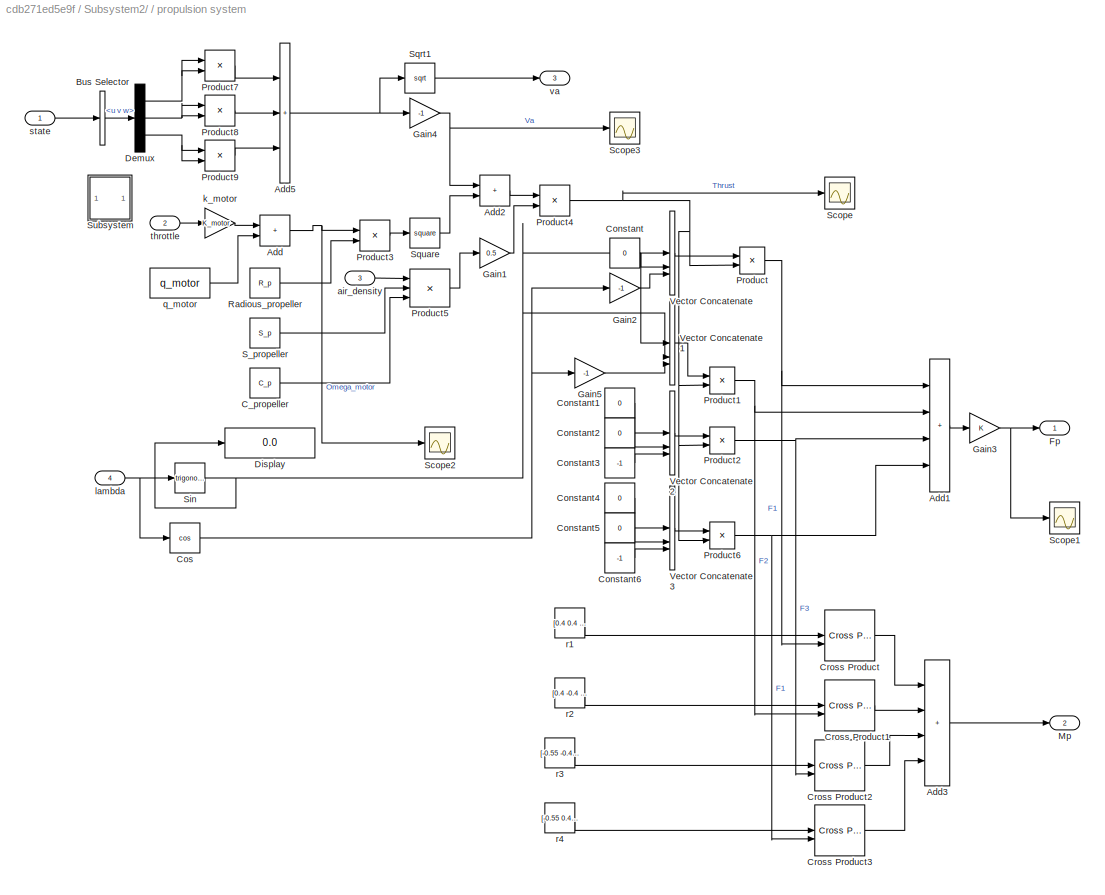
BLOCK [SubSystem] Subsystem2/ / propulsion system
BLOCK [Constant] Subsystem2/ / propulsion system/  r1
  Value = [0.4  0.4  0]'
BLOCK [Constant] Subsystem2/ / propulsion system/  r2
  Value = [0.4  -0.4  0]'
BLOCK [Constant] Subsystem2/ / propulsion system/  r3
  Value = [-0.55 -0.4  0]'
BLOCK [Constant] Subsystem2/ / propulsion system/  r4
  Value = [-0.55  0.4 0]'
BLOCK [Constant] Subsystem2/ / propulsion system/ C_propeller
  Value = C_p
BLOCK [Outport] Subsystem2/ / propulsion system/ Fp
BLOCK [Outport] Subsystem2/ / propulsion system/ Mp
  Port = 2
BLOCK [Constant] Subsystem2/ / propulsion system/ Radious_propeller
  Value = R_p
BLOCK [Constant] Subsystem2/ / propulsion system/ S_propeller
  Value = S_p
BLOCK [Inport] Subsystem2/ / propulsion system/ air_density
  Port = 3
BLOCK [Gain] Subsystem2/ / propulsion system/ k_motor
  Gain = K_motor
BLOCK [Inport] Subsystem2/ / propulsion system/ lambda
  Port = 4
BLOCK [Constant] Subsystem2/ / propulsion system/ q_motor
  Value = q_motor
BLOCK [Inport] Subsystem2/ / propulsion system/ state
BLOCK [Inport] Subsystem2/ / propulsion system/ throttle
  Port = 2
BLOCK [Outport] Subsystem2/ / propulsion system/ va
  Port = 3
BLOCK [Sum] Subsystem2/ / propulsion system/Add
  IconShape = rectangular
BLOCK [Sum] Subsystem2/ / propulsion system/Add1
  IconShape = rectangular
  Inputs = ++++
BLOCK [Sum] Subsystem2/ / propulsion system/Add2
  IconShape = rectangular
BLOCK [Sum] Subsystem2/ / propulsion system/Add3
  IconShape = rectangular
  Inputs = ++++
BLOCK [Sum] Subsystem2/ / propulsion system/Add5
  IconShape = rectangular
  Inputs = +++
BLOCK [BusSelector] Subsystem2/ / propulsion system/Bus Selector
  OutputSignals = u v w
BLOCK [Constant] Subsystem2/ / propulsion system/Constant
  Value = 0
BLOCK [Constant] Subsystem2/ / propulsion system/Constant1
  Value = 0
BLOCK [Constant] Subsystem2/ / propulsion system/Constant2
  Value = 0
BLOCK [Constant] Subsystem2/ / propulsion system/Constant3
  Value = -1
BLOCK [Constant] Subsystem2/ / propulsion system/Constant4
  Value = 0
BLOCK [Constant] Subsystem2/ / propulsion system/Constant5
  Value = 0
BLOCK [Constant] Subsystem2/ / propulsion system/Constant6
  Value = -1
BLOCK [Trigonometry] Subsystem2/ / propulsion system/Cos
  Operator = cos
BLOCK [Reference] Subsystem2/ / propulsion system/Cross Product  REF=matrix_library/Cross Product
  LibrarySourceBlock = simulink/Matrix\nOperations/Cross Product
  SourceBlock = matrix_library/Cross Product
  SourceType = CrossProduct
BLOCK [Reference] Subsystem2/ / propulsion system/Cross Product1  REF=matrix_library/Cross Product
  LibrarySourceBlock = simulink/Matrix\nOperations/Cross Product
  SourceBlock = matrix_library/Cross Product
  SourceType = CrossProduct
BLOCK [Reference] Subsystem2/ / propulsion system/Cross Product2  REF=matrix_library/Cross Product
  LibrarySourceBlock = simulink/Matrix\nOperations/Cross Product
  SourceBlock = matrix_library/Cross Product
  SourceType = CrossProduct
BLOCK [Reference] Subsystem2/ / propulsion system/Cross Product3  REF=matrix_library/Cross Product
  LibrarySourceBlock = simulink/Matrix\nOperations/Cross Product
  SourceBlock = matrix_library/Cross Product
  SourceType = CrossProduct
BLOCK [Demux] Subsystem2/ / propulsion system/Demux
  Outputs = 03
BLOCK [Display] Subsystem2/ / propulsion system/Display
  Decimation = 1
BLOCK [Gain] Subsystem2/ / propulsion system/Gain1
  Gain = 0.5
BLOCK [Gain] Subsystem2/ / propulsion system/Gain2
  Gain = -1
BLOCK [Gain] Subsystem2/ / propulsion system/Gain3
BLOCK [Gain] Subsystem2/ / propulsion system/Gain4
  Gain = -1
BLOCK [Gain] Subsystem2/ / propulsion system/Gain5
  Gain = -1
BLOCK [Product] Subsystem2/ / propulsion system/Product
BLOCK [Product] Subsystem2/ / propulsion system/Product1
BLOCK [Product] Subsystem2/ / propulsion system/Product2
BLOCK [Product] Subsystem2/ / propulsion system/Product3
BLOCK [Product] Subsystem2/ / propulsion system/Product4
BLOCK [Product] Subsystem2/ / propulsion system/Product5
  Inputs = 03
BLOCK [Product] Subsystem2/ / propulsion system/Product6
BLOCK [Product] Subsystem2/ / propulsion system/Product7
BLOCK [Product] Subsystem2/ / propulsion system/Product8
BLOCK [Product] Subsystem2/ / propulsion system/Product9
BLOCK [Scope] Subsystem2/ / propulsion system/Scope
  Floating = off
  NumInputPorts = 1
  ScopeSpecificationString = Simulink.scopes.TimeScopeBlockCfg('CurrentConfiguration', extmgr.ConfigurationSet(extmgr.Configuration('Core','General UI',true),extmgr.Configuration('Core','Source UI',true),extmgr.Configuration('Sources','WiredSimulink',true,'DataLoggingVariableName','ScopeData13'),extmgr.Configuration('Visuals','Time Domain',true,'SerializedDisplays',{struct('MinYLimReal','-1484452670873.02173','MaxYLimReal','1...<+1537ch>
BLOCK [Scope] Subsystem2/ / propulsion system/Scope1
  Floating = off
  NumInputPorts = 1
  ScopeSpecificationString = Simulink.scopes.TimeScopeBlockCfg('CurrentConfiguration', extmgr.ConfigurationSet(extmgr.Configuration('Core','General UI',true),extmgr.Configuration('Core','Source UI',true),extmgr.Configuration('Sources','WiredSimulink',true,'DataLoggingVariableName','ScopeData3'),extmgr.Configuration('Visuals','Time Domain',true,'SerializedDisplays',{struct('MinYLimReal','-180304.70157','MaxYLimReal','197923.75...<+1568ch>
BLOCK [Scope] Subsystem2/ / propulsion system/Scope2
  Floating = off
  NumInputPorts = 1
  ScopeSpecificationString = Simulink.scopes.TimeScopeBlockCfg('CurrentConfiguration', extmgr.ConfigurationSet(extmgr.Configuration('Core','General UI',true),extmgr.Configuration('Core','Source UI',true),extmgr.Configuration('Sources','WiredSimulink',true,'DataLoggingVariableName','ScopeData6'),extmgr.Configuration('Visuals','Time Domain',true,'SerializedDisplays',{struct('MinYLimReal','-1730.50024','MaxYLimReal','-323.97694'...<+1471ch>
BLOCK [Scope] Subsystem2/ / propulsion system/Scope3
  Floating = off
  NumInputPorts = 1
  ScopeSpecificationString = Simulink.scopes.TimeScopeBlockCfg('CurrentConfiguration', extmgr.ConfigurationSet(extmgr.Configuration('Core','General UI',true),extmgr.Configuration('Core','Source UI',true),extmgr.Configuration('Sources','WiredSimulink',true,'DataLoggingVariableName','ScopeData4'),extmgr.Configuration('Visuals','Time Domain',true,'SerializedDisplays',{struct('MinYLimReal','-4915456664775223558655759111709261824....<+1670ch>
BLOCK [Trigonometry] Subsystem2/ / propulsion system/Sin
BLOCK [Sqrt] Subsystem2/ / propulsion system/Sqrt1
BLOCK [Math] Subsystem2/ / propulsion system/Square
  Operator = square
BLOCK [SubSystem] Subsystem2/ / propulsion system/Subsystem
  Commented = on
BLOCK [Outport] Subsystem2/ / propulsion system/Subsystem/ Fp
BLOCK [Outport] Subsystem2/ / propulsion system/Subsystem/ Mp
  Port = 2
BLOCK [Constant] Subsystem2/ / propulsion system/Subsystem/ Thrust_offset_angle_deg
  Commented = on
  Value = alpha_thoff
BLOCK [Constant] Subsystem2/ / propulsion system/Subsystem/ x-thrustoff
  Commented = on
  Value = 0
BLOCK [Constant] Subsystem2/ / propulsion system/Subsystem/ y-thrustoff
  Commented = on
  Value = 0
BLOCK [Constant] Subsystem2/ / propulsion system/Subsystem/ z-thrustoff
  Commented = on
  Value = 0
BLOCK [Constant] Subsystem2/ / propulsion system/Subsystem/Constant
  Commented = on
  Value = 0
BLOCK [Trigonometry] Subsystem2/ / propulsion system/Subsystem/Cos
  Commented = on
  Operator = cos
BLOCK [Reference] Subsystem2/ / propulsion system/Subsystem/Degrees to Radians  REF=simulink_extras/Transformations/Degrees to
Radians
  Commented = on
  SourceBlock = simulink_extras/Transformations/Degrees to\nRadians
  SourceType = DegreesToRadians
BLOCK [EnablePort] Subsystem2/ / propulsion system/Subsystem/Enable
BLOCK [Inport] Subsystem2/ / propulsion system/Subsystem/In1
BLOCK [Inport] Subsystem2/ / propulsion system/Subsystem/In2
  Port = 2
BLOCK [Mux] Subsystem2/ / propulsion system/Subsystem/Mux
  Commented = on
  DisplayOption = bar
  Inputs = 03
BLOCK [Mux] Subsystem2/ / propulsion system/Subsystem/Mux1
  Commented = on
  DisplayOption = bar
  Inputs = 03
BLOCK [Product] Subsystem2/ / propulsion system/Subsystem/Product10
  Commented = on
BLOCK [Product] Subsystem2/ / propulsion system/Subsystem/Product6
  Commented = on
BLOCK [Product] Subsystem2/ / propulsion system/Subsystem/Product7
  Commented = on
BLOCK [Product] Subsystem2/ / propulsion system/Subsystem/Product8
  Commented = on
BLOCK [Product] Subsystem2/ / propulsion system/Subsystem/Product9
  Commented = on
BLOCK [Scope] Subsystem2/ / propulsion system/Subsystem/Scope
  Commented = on
  Floating = off
  NumInputPorts = 1
  ScopeSpecificationString = Simulink.scopes.TimeScopeBlockCfg('CurrentConfiguration', extmgr.ConfigurationSet(extmgr.Configuration('Core','General UI',true),extmgr.Configuration('Core','Source UI',true),extmgr.Configuration('Sources','WiredSimulink',true,'DataLoggingVariableName','ScopeData8'),extmgr.Configuration('Visuals','Time Domain',true,'SerializedDisplays',{struct('MinYLimReal','-286492866218468637359849791547244544.0...<+1692ch>
BLOCK [Trigonometry] Subsystem2/ / propulsion system/Subsystem/Sin
  Commented = on
BLOCK [Concatenate] Subsystem2/ / propulsion system/Vector Concatenate
  NumInputs = 03
BLOCK [Concatenate] Subsystem2/ / propulsion system/Vector Concatenate1
  NumInputs = 03
BLOCK [Concatenate] Subsystem2/ / propulsion system/Vector Concatenate2
  NumInputs = 03
BLOCK [Concatenate] Subsystem2/ / propulsion system/Vector Concatenate3
  NumInputs = 03
BLOCK [Sum] Subsystem2/ /Add
  IconShape = rectangular
  Inputs = +++
BLOCK [Sum] Subsystem2/ /Add1
  IconShape = rectangular
BLOCK [Sum] Subsystem2/ /Add2
  IconShape = rectangular
BLOCK [SubSystem] Subsystem2/ /Aerodynamic system
BLOCK [Constant] Subsystem2/ /Aerodynamic system/  S_ref
  Value = S_ref
BLOCK [Inport] Subsystem2/ /Aerodynamic system/  alpha_rad
  Port = 8
BLOCK [Outport] Subsystem2/ /Aerodynamic system/ F_a
  Port = 7
BLOCK [Outport] Subsystem2/ /Aerodynamic system/ Fax
BLOCK [Outport] Subsystem2/ /Aerodynamic system/ Fay
  Port = 2
BLOCK [Outport] Subsystem2/ /Aerodynamic system/ Faz
  Port = 3
BLOCK [Outport] Subsystem2/ /Aerodynamic system/ M_a
  Port = 8
BLOCK [Outport] Subsystem2/ /Aerodynamic system/ M_ax
  Port = 4
BLOCK [Outport] Subsystem2/ /Aerodynamic system/ M_az
  Port = 6
BLOCK [Inport] Subsystem2/ /Aerodynamic system/ Q_dyna
  Port = 7
BLOCK [Constant] Subsystem2/ /Aerodynamic system/ b
  Value = Wspan
BLOCK [Constant] Subsystem2/ /Aerodynamic system/ c
  Value = c_w
BLOCK [Inport] Subsystem2/ /Aerodynamic system/ cl
  Port = 4
BLOCK [Inport] Subsystem2/ /Aerodynamic system/ cm
  Port = 5
BLOCK [Inport] Subsystem2/ /Aerodynamic system/ cn
  Port = 6
BLOCK [Sum] Subsystem2/ /Aerodynamic system/Add
  IconShape = rectangular
  Inputs = +-
BLOCK [Sum] Subsystem2/ /Aerodynamic system/Add1
  IconShape = rectangular
BLOCK [Inport] Subsystem2/ /Aerodynamic system/CD
  Port = 2
BLOCK [Inport] Subsystem2/ /Aerodynamic system/CL
BLOCK [Inport] Subsystem2/ /Aerodynamic system/CY
  Port = 3
BLOCK [Trigonometry] Subsystem2/ /Aerodynamic system/Cos
  Operator = cos
BLOCK [Gain] Subsystem2/ /Aerodynamic system/Gain
  Gain = -1
BLOCK [Gain] Subsystem2/ /Aerodynamic system/Gain1
  Gain = -1
BLOCK [Outport] Subsystem2/ /Aerodynamic system/M_ay
  Port = 5
BLOCK [Mux] Subsystem2/ /Aerodynamic system/Mux
  DisplayOption = bar
  Inputs = 03
BLOCK [Mux] Subsystem2/ /Aerodynamic system/Mux1
  DisplayOption = bar
  Inputs = 03
BLOCK [Product] Subsystem2/ /Aerodynamic system/Product
  Inputs = 04
BLOCK [Product] Subsystem2/ /Aerodynamic system/Product1
  Inputs = 04
BLOCK [Product] Subsystem2/ /Aerodynamic system/Product2
  Inputs = 04
BLOCK [Product] Subsystem2/ /Aerodynamic system/Product3
  Inputs = 03
BLOCK [Product] Subsystem2/ /Aerodynamic system/Product4
  Inputs = 03
BLOCK [Product] Subsystem2/ /Aerodynamic system/Product5
  Inputs = 03
BLOCK [Product] Subsystem2/ /Aerodynamic system/Product6
BLOCK [Product] Subsystem2/ /Aerodynamic system/Product7
BLOCK [Product] Subsystem2/ /Aerodynamic system/Product8
BLOCK [Product] Subsystem2/ /Aerodynamic system/Product9
BLOCK [Trigonometry] Subsystem2/ /Aerodynamic system/Sin
BLOCK [BusSelector] Subsystem2/ /Bus Selector
  OutputSignals = Alpha_rad,pn pe pd,Euler_ang_rad,Va
BLOCK [Clock] Subsystem2/ /Clock
  Commented = on
BLOCK [Constant] Subsystem2/ /Constant
  Value = pi/2
BLOCK [Demux] Subsystem2/ /Demux
  Outputs = 04
BLOCK [Display] Subsystem2/ /Display
  Decimation = 1
BLOCK [Inport] Subsystem2/ /Dynamic_press
  Port = 2
BLOCK [Outport] Subsystem2/ /F
BLOCK [Gain] Subsystem2/ /Gain
BLOCK [Gain] Subsystem2/ /Gain1
BLOCK [Gain] Subsystem2/ /Gain2
BLOCK [Gain] Subsystem2/ /Gain3
BLOCK [SubSystem] Subsystem2/ /MATLAB FuTilt angle
  Commented = on
  ErrorFcn = Stateflow.Translate.translate
  LibrarySourceBlock = simulink/User-Defined\nFunctions/MATLAB Function
  PermitHierarchicalResolution = ExplicitOnly
  SFBlockType = MATLAB Function
  TreatAsAtomicUnit = on
BLOCK [Demux] Subsystem2/ /MATLAB FuTilt angle/ Demux 
  Outputs = 1
BLOCK [S-Function] Subsystem2/ /MATLAB FuTilt angle/ SFunction 
  EnableBusSupport = on
  FunctionName = sf_sfun
  PortCounts = [1 2]
  SFcnIsStateOwnerBlock = off
  SFunctionDeploymentMode = off
  Tag = Stateflow S-Function 2
BLOCK [Terminator] Subsystem2/ /MATLAB FuTilt angle/ Terminator 
BLOCK [Inport] Subsystem2/ /MATLAB FuTilt angle/t
BLOCK [Outport] Subsystem2/ /MATLAB FuTilt angle/y
BLOCK [Scope] Subsystem2/ /Scope
  Floating = off
  NumInputPorts = 1
  ScopeSpecificationString = Simulink.scopes.TimeScopeBlockCfg('CurrentConfiguration', extmgr.ConfigurationSet(extmgr.Configuration('Core','General UI',true),extmgr.Configuration('Core','Source UI',true),extmgr.Configuration('Sources','WiredSimulink',true,'DataLoggingVariableName','ScopeData3'),extmgr.Configuration('Visuals','Time Domain',true,'SerializedDisplays',{struct('MinYLimReal','-389.70825','MaxYLimReal','263.03836','...<+1471ch>
BLOCK [Scope] Subsystem2/ /Scope1
  Floating = off
  NumInputPorts = 1
  ScopeSpecificationString = Simulink.scopes.TimeScopeBlockCfg('CurrentConfiguration', extmgr.ConfigurationSet(extmgr.Configuration('Core','General UI',true),extmgr.Configuration('Core','Source UI',true),extmgr.Configuration('Sources','WiredSimulink',true,'DataLoggingVariableName','ScopeData4'),extmgr.Configuration('Visuals','Time Domain',true,'SerializedDisplays',{struct('MinYLimReal','-186705.91536','MaxYLimReal','119696.41...<+1560ch>
BLOCK [Scope] Subsystem2/ /Scope2
  Floating = off
  NumInputPorts = 1
  ScopeSpecificationString = Simulink.scopes.TimeScopeBlockCfg('CurrentConfiguration', extmgr.ConfigurationSet(extmgr.Configuration('Core','General UI',true),extmgr.Configuration('Core','Source UI',true),extmgr.Configuration('Sources','WiredSimulink',true,'DataLoggingVariableName','ScopeData2'),extmgr.Configuration('Visuals','Time Domain',true,'SerializedDisplays',{struct('MinYLimReal','-11.16047','MaxYLimReal','2.94758','YLa...<+1434ch>
BLOCK [Scope] Subsystem2/ /Scope3
  Floating = off
  NumInputPorts = 1
  ScopeSpecificationString = Simulink.scopes.TimeScopeBlockCfg('CurrentConfiguration', extmgr.ConfigurationSet(extmgr.Configuration('Core','General UI',true),extmgr.Configuration('Core','Source UI',true),extmgr.Configuration('Sources','WiredSimulink',true,'DataLoggingVariableName','ScopeData3'),extmgr.Configuration('Visuals','Time Domain',true,'SerializedDisplays',{struct('MinYLimReal','-261365.82865','MaxYLimReal','29136.212...<+1430ch>
BLOCK [Scope] Subsystem2/ /Scope4
  Floating = off
  NumInputPorts = 1
  ScopeSpecificationString = Simulink.scopes.TimeScopeBlockCfg('CurrentConfiguration', extmgr.ConfigurationSet(extmgr.Configuration('Core','General UI',true),extmgr.Configuration('Core','Source UI',true),extmgr.Configuration('Sources','WiredSimulink',true,'DataLoggingVariableName','ScopeData7'),extmgr.Configuration('Visuals','Time Domain',true,'SerializedDisplays',{struct('MinYLimReal','-261365.82865','MaxYLimReal','29136.212...<+1407ch>
BLOCK [SubSystem] Subsystem2/ /Signal Builder
  ClipboardFcn = sigbuilder_block('clipboard');
  CloseFcn = sigbuilder_block('close');
  ContinueFcn = sigbuilder_block('continue');
  CopyFcn = sigbuilder_block('copy');
  DeleteFcn = sigbuilder_block('delete');
  LoadFcn = sigbuilder_block('load');
  MaskHideContents = on
  ModelCloseFcn = sigbuilder_block('modelClose');
  NameChangeFcn = sigbuilder_block('namechange');
  OpenFcn = sigbuilder_block('open',[5.4 36 1141.2 516.6 ]);
  PauseFcn = sigbuilder_block('pause');
  PreSaveFcn = sigbuilder_block('preSave');
  StartFcn = sigbuilder_block('start');
  StopFcn = sigbuilder_block('stop');
  Tag = STV Subsys
BLOCK [Demux] Subsystem2/ /Signal Builder/Demux
  DisplayOption = none
  Outputs = 1
  Tag = STV Demux
BLOCK [FromWorkspace] Subsystem2/ /Signal Builder/FromWs
  Tag = STV FromWs
  VariableName = tuvar
BLOCK [Outport] Subsystem2/ /Signal Builder/Signal 2
  Tag = STV Outport
BLOCK [SubSystem] Subsystem2/ /Subsystem1
BLOCK [Outport] Subsystem2/ /Subsystem1/ Throttle
BLOCK [Sum] Subsystem2/ /Subsystem1/Add
  IconShape = rectangular
  Inputs = +-
BLOCK [Constant] Subsystem2/ /Subsystem1/Constant
  Value = 1000
BLOCK [Display] Subsystem2/ /Subsystem1/Display
  Decimation = 1
BLOCK [Product] Subsystem2/ /Subsystem1/Divide
  Inputs = */
BLOCK [Inport] Subsystem2/ /Subsystem1/Input
BLOCK [Scope] Subsystem2/ /Subsystem1/Scope
  Floating = off
  NumInputPorts = 1
  ScopeSpecificationString = Simulink.scopes.TimeScopeBlockCfg('CurrentConfiguration', extmgr.ConfigurationSet(extmgr.Configuration('Core','General UI',true),extmgr.Configuration('Core','Source UI',true),extmgr.Configuration('Sources','WiredSimulink',true,'DataLoggingVariableName','ScopeData10'),extmgr.Configuration('Visuals','Time Domain',true,'SerializedDisplays',{struct('MinYLimReal','-1.01716','MaxYLimReal','-0.85964','YL...<+1482ch>
BLOCK [Terminator] Subsystem2/ /Terminator
BLOCK [Terminator] Subsystem2/ /Terminator1
BLOCK [Terminator] Subsystem2/ /Terminator2
BLOCK [Terminator] Subsystem2/ /Terminator3
BLOCK [Terminator] Subsystem2/ /Terminator4
BLOCK [Terminator] Subsystem2/ /Terminator5
BLOCK [Terminator] Subsystem2/ /Terminator6
BLOCK [SubSystem] Subsystem2/ /Tilt angle
  ErrorFcn = Stateflow.Translate.translate
  LibrarySourceBlock = simulink/User-Defined\nFunctions/MATLAB Function
  PermitHierarchicalResolution = ExplicitOnly
  SFBlockType = MATLAB Function
  TreatAsAtomicUnit = on
BLOCK [Demux] Subsystem2/ /Tilt angle/ Demux 
  Outputs = 1
BLOCK [S-Function] Subsystem2/ /Tilt angle/ SFunction 
  EnableBusSupport = on
  FunctionName = sf_sfun
  PortCounts = [1 2]
  SFcnIsStateOwnerBlock = off
  SFunctionDeploymentMode = off
  Tag = Stateflow S-Function 1
BLOCK [Terminator] Subsystem2/ /Tilt angle/ Terminator 
BLOCK [Inport] Subsystem2/ /Tilt angle/u
BLOCK [Outport] Subsystem2/ /Tilt angle/y
BLOCK [Concatenate] Subsystem2/ /Vector Concatenate
  NumInputs = 03
BLOCK [Inport] Subsystem2/ /states
  Port = 3
BLOCK [Inport] Subsystem2/ /ur
  Port = 4
BLOCK [Outport] Subsystem2/ Inertial Velocity 
BLOCK [Inport] Subsystem2/ Rho_air
BLOCK [Reference] Subsystem2/6DOF (Euler Angles)  REF=shared6dof/6DOF (Euler Angles)
  LibrarySourceBlock = aerolib6dof2/6DOF (Euler Angles)
  SourceBlock = shared6dof/6DOF (Euler Angles)
  SourceType = 6DOF EoM (Body Axis)
BLOCK [BusCreator] Subsystem2/Bus Creator
  DisplayOption = bar
  InheritFromInputs = on
  Inputs = 10
BLOCK [Outport] Subsystem2/C_B_E
  Port = 4
BLOCK [Demux] Subsystem2/Demux
  Outputs = 03
BLOCK [Inport] Subsystem2/Dynamic_press
  Port = 2
BLOCK [Mux] Subsystem2/Mux
  DisplayOption = bar
  Inputs = 03
BLOCK [Scope] Subsystem2/Scope
  Floating = off
  NumInputPorts = 1
  ScopeSpecificationString = Simulink.scopes.TimeScopeBlockCfg('CurrentConfiguration', extmgr.ConfigurationSet(extmgr.Configuration('Core','General UI',true),extmgr.Configuration('Core','Source UI',true),extmgr.Configuration('Sources','WiredSimulink',true,'DataLoggingVariableName','ScopeData14'),extmgr.Configuration('Visuals','Time Domain',true,'SerializedDisplays',{struct('MinYLimReal','-2552.68798','MaxYLimReal','359.7208',...<+1490ch>
BLOCK [Scope] Subsystem2/Scope1
  Floating = off
  NumInputPorts = 2
  ScopeSpecificationString = Simulink.scopes.TimeScopeBlockCfg('CurrentConfiguration', extmgr.ConfigurationSet(extmgr.Configuration('Core','General UI',true),extmgr.Configuration('Core','Source UI',true),extmgr.Configuration('Sources','WiredSimulink',true,'DataLoggingVariableName','ScopeData15'),extmgr.Configuration('Visuals','Time Domain',true,'SerializedDisplays',{struct('MinYLimReal','-36.07674','MaxYLimReal','39.48833','Y...<+1502ch>
BLOCK [SubSystem] Subsystem2/Subsystem
BLOCK [SubSystem] Subsystem2/Subsystem/ Body to LPI
  NameLocation = right
BLOCK [Outport] Subsystem2/Subsystem/ Body to LPI/C_B_E
BLOCK [Display] Subsystem2/Subsystem/ Body to LPI/Display
  Decimation = 1
BLOCK [Fcn] Subsystem2/Subsystem/ Body to LPI/Fcn
  Expr = cos(u(2))*cos(u(3))
BLOCK [Fcn] Subsystem2/Subsystem/ Body to LPI/Fcn1
  Expr = cos(u(3))*sin(u(1))*sin(u(2))-cos(u(1))*sin(u(3))
BLOCK [Fcn] Subsystem2/Subsystem/ Body to LPI/Fcn2
  Expr = cos(u(1))*sin(u(2))*cos(u(3))+sin(u(1))*sin(u(3))
BLOCK [Fcn] Subsystem2/Subsystem/ Body to LPI/Fcn3
  Expr = cos(u(2))*sin(u(3))
BLOCK [Fcn] Subsystem2/Subsystem/ Body to LPI/Fcn4
  Expr = sin(u(3))*sin(u(1))*sin(u(2))+cos(u(1))*cos(u(3))
BLOCK [Fcn] Subsystem2/Subsystem/ Body to LPI/Fcn5
  Expr = sin(u(3))*cos(u(1))*sin(u(2))-sin(u(1))*cos(u(3))
BLOCK [Fcn] Subsystem2/Subsystem/ Body to LPI/Fcn6
  Expr = -sin(u(2))
BLOCK [Fcn] Subsystem2/Subsystem/ Body to LPI/Fcn7
  Expr = sin(u(1))*cos(u(2))
BLOCK [Fcn] Subsystem2/Subsystem/ Body to LPI/Fcn8
  Expr = cos(u(1))*cos(u(2))
BLOCK [Mux] Subsystem2/Subsystem/ Body to LPI/Mux
  DisplayOption = bar
  Inputs = 3
BLOCK [Reshape] Subsystem2/Subsystem/ Body to LPI/Reshape
  OutputDimensionality = Customize
  OutputDimensions = [3,3]
BLOCK [Concatenate] Subsystem2/Subsystem/ Body to LPI/Vector Concatenate
  NumInputs = 09
BLOCK [Inport] Subsystem2/Subsystem/ Body to LPI/phi
BLOCK [Inport] Subsystem2/Subsystem/ Body to LPI/psi
  Port = 3
BLOCK [Inport] Subsystem2/Subsystem/ Body to LPI/theta
  Port = 2
BLOCK [Outport] Subsystem2/Subsystem/ Inertial Velocity 
  Port = 4
BLOCK [Outport] Subsystem2/Subsystem/ V_t
BLOCK [Gain] Subsystem2/Subsystem/ Wx
BLOCK [Inport] Subsystem2/Subsystem/ X
  Port = 3
BLOCK [Outport] Subsystem2/Subsystem/ alpha
  Port = 2
BLOCK [Outport] Subsystem2/Subsystem/ beta
  Port = 3
BLOCK [Inport] Subsystem2/Subsystem/ phi theta psi
BLOCK [Inport] Subsystem2/Subsystem/ u v w
  Port = 2
BLOCK [Sum] Subsystem2/Subsystem/Add
  IconShape = rectangular
  Inputs = -+
BLOCK [Sum] Subsystem2/Subsystem/Add1
  IconShape = rectangular
  Inputs = +++
BLOCK [Sum] Subsystem2/Subsystem/Add7
  IconShape = rectangular
BLOCK [Trigonometry] Subsystem2/Subsystem/Asin
  Commented = through
  Operator = asin
BLOCK [Trigonometry] Subsystem2/Subsystem/Atan
  Commented = through
  Operator = atan
BLOCK [BusSelector] Subsystem2/Subsystem/Bus Selector
  OutputSignals = Euler_ang_rad,p q r,u v w
BLOCK [Outport] Subsystem2/Subsystem/C_B_E
  Port = 7
BLOCK [Constant] Subsystem2/Subsystem/Constant
  Value = 0.01
BLOCK [Trigonometry] Subsystem2/Subsystem/Cos
  Operator = cos
BLOCK [Trigonometry] Subsystem2/Subsystem/Cos1
  Operator = cos
BLOCK [Demux] Subsystem2/Subsystem/Demux
  Outputs = 03
BLOCK [Demux] Subsystem2/Subsystem/Demux1
  Outputs = 03
BLOCK [Demux] Subsystem2/Subsystem/Demux2
  Outputs = 03
BLOCK [Display] Subsystem2/Subsystem/Display
  Decimation = 1
BLOCK [Display] Subsystem2/Subsystem/Display1
  Decimation = 1
BLOCK [Product] Subsystem2/Subsystem/Divide
  Inputs = */
BLOCK [Product] Subsystem2/Subsystem/Divide1
  Inputs = */
BLOCK [Product] Subsystem2/Subsystem/Divide2
  Inputs = */
BLOCK [Integrator] Subsystem2/Subsystem/Integrator
BLOCK [Integrator] Subsystem2/Subsystem/Integrator1
BLOCK [Product] Subsystem2/Subsystem/MatrixMultiply
  Multiplication = Matrix(*)
BLOCK [Product] Subsystem2/Subsystem/MatrixMultiply1
  Multiplication = Matrix(*)
BLOCK [Mux] Subsystem2/Subsystem/Mux
  DisplayOption = bar
  Inputs = 03
BLOCK [Product] Subsystem2/Subsystem/Product
BLOCK [Product] Subsystem2/Subsystem/Product1
BLOCK [Product] Subsystem2/Subsystem/Product2
BLOCK [Product] Subsystem2/Subsystem/Product3
BLOCK [Product] Subsystem2/Subsystem/Product4
BLOCK [Reference] Subsystem2/Subsystem/Rotation Angles to Direction Cosine Matrix  REF=sharedtransform/Rotation Angles to
Direction Cosine Matrix
  AttributesFormatString = Rotation Order: %<rotationOrder>
  LibrarySourceBlock = aerolibtransform2/Rotation Angles to\nDirection Cosine Matrix
  SourceBlock = sharedtransform/Rotation Angles to\nDirection Cosine Matrix
  SourceType = Ang2DCM
BLOCK [Saturate] Subsystem2/Subsystem/Saturation
  Commented = through
  LowerLimit = -pi/6
  UpperLimit = pi/6
BLOCK [Saturate] Subsystem2/Subsystem/Saturation1
  LowerLimit = 0
  UpperLimit = 25
BLOCK [Scope] Subsystem2/Subsystem/Scope
  Floating = off
  NumInputPorts = 1
  ScopeSpecificationString = Simulink.scopes.TimeScopeBlockCfg('CurrentConfiguration', extmgr.ConfigurationSet(extmgr.Configuration('Core','General UI',true),extmgr.Configuration('Core','Source UI',true),extmgr.Configuration('Sources','WiredSimulink',true,'DataLoggingVariableName','ScopeData1'),extmgr.Configuration('Visuals','Time Domain',true,'SerializedDisplays',{struct('MinYLimReal','-12.69082','MaxYLimReal','12.75925','YL...<+1461ch>
BLOCK [Scope] Subsystem2/Subsystem/Scope1
  Floating = off
  NumInputPorts = 2
  ScopeSpecificationString = Simulink.scopes.TimeScopeBlockCfg('CurrentConfiguration', extmgr.ConfigurationSet(extmgr.Configuration('Core','General UI',true),extmgr.Configuration('Core','Source UI',true),extmgr.Configuration('Sources','WiredSimulink',true,'DataLoggingVariableName','ScopeData6'),extmgr.Configuration('Visuals','Time Domain',true,'SerializedDisplays',{struct('MinYLimReal','-261285727614830496.00000','MaxYLimReal...<+1529ch>
BLOCK [Scope] Subsystem2/Subsystem/Scope2
  Floating = off
  NumInputPorts = 1
  ScopeSpecificationString = Simulink.scopes.TimeScopeBlockCfg('CurrentConfiguration', extmgr.ConfigurationSet(extmgr.Configuration('Core','General UI',true),extmgr.Configuration('Core','Source UI',true),extmgr.Configuration('Sources','WiredSimulink',true,'DataLoggingVariableName','ScopeData3'),extmgr.Configuration('Visuals','Time Domain',true,'SerializedDisplays',{struct('MinYLimReal','-74.31916','MaxYLimReal','365.5199','YL...<+1442ch>
BLOCK [Scope] Subsystem2/Subsystem/Scope3
  Floating = off
  NumInputPorts = 2
  ScopeSpecificationString = Simulink.scopes.TimeScopeBlockCfg('CurrentConfiguration', extmgr.ConfigurationSet(extmgr.Configuration('Core','General UI',true),extmgr.Configuration('Core','Source UI',true),extmgr.Configuration('Sources','WiredSimulink',true,'DataLoggingVariableName','ScopeData3'),extmgr.Configuration('Visuals','Time Domain',true,'SerializedDisplays',{struct('MinYLimReal','-443.05283','MaxYLimReal','3734.12884',...<+1469ch>
BLOCK [Scope] Subsystem2/Subsystem/Scope4
  Floating = off
  NumInputPorts = 1
  ScopeSpecificationString = Simulink.scopes.TimeScopeBlockCfg('CurrentConfiguration', extmgr.ConfigurationSet(extmgr.Configuration('Core','General UI',true),extmgr.Configuration('Core','Source UI',true),extmgr.Configuration('Sources','WiredSimulink',true,'DataLoggingVariableName','ScopeData4'),extmgr.Configuration('Visuals','Time Domain',true,'SerializedDisplays',{struct('MinYLimReal','-1.33513','MaxYLimReal','0.79485','YLab...<+1463ch>
BLOCK [Scope] Subsystem2/Subsystem/Scope5
  Floating = off
  NumInputPorts = 1
  ScopeSpecificationString = Simulink.scopes.TimeScopeBlockCfg('CurrentConfiguration', extmgr.ConfigurationSet(extmgr.Configuration('Core','General UI',true),extmgr.Configuration('Core','Source UI',true),extmgr.Configuration('Sources','WiredSimulink',true,'DataLoggingVariableName','ScopeData5'),extmgr.Configuration('Visuals','Time Domain',true,'SerializedDisplays',{struct('MinYLimReal','-5484205935422375009976320.00000','MaxY...<+1616ch>
BLOCK [Scope] Subsystem2/Subsystem/Scope6
  Floating = off
  NumInputPorts = 1
  ScopeSpecificationString = Simulink.scopes.TimeScopeBlockCfg('CurrentConfiguration', extmgr.ConfigurationSet(extmgr.Configuration('Core','General UI',true),extmgr.Configuration('Core','Source UI',true),extmgr.Configuration('Sources','WiredSimulink',true,'DataLoggingVariableName','ScopeData6'),extmgr.Configuration('Visuals','Time Domain',true,'SerializedDisplays',{struct('MinYLimReal','-53389328.90411','MaxYLimReal','4805039...<+1512ch>
BLOCK [Trigonometry] Subsystem2/Subsystem/Sin
BLOCK [Sqrt] Subsystem2/Subsystem/Sqrt
BLOCK [Terminator] Subsystem2/Subsystem/Terminator
BLOCK [Terminator] Subsystem2/Subsystem/Terminator1
BLOCK [Math] Subsystem2/Subsystem/Transpose
  Operator = transpose
BLOCK [Math] Subsystem2/Subsystem/Transpose1
  Operator = transpose
BLOCK [Math] Subsystem2/Subsystem/Transpose2
  Operator = transpose
BLOCK [Outport] Subsystem2/Subsystem/Va
  Port = 8
BLOCK [Gain] Subsystem2/Subsystem/Wy
BLOCK [Gain] Subsystem2/Subsystem/Wz
BLOCK [Outport] Subsystem2/Subsystem/XYZE
  Port = 5
BLOCK [Outport] Subsystem2/Subsystem/yaw angle
  Port = 6
BLOCK [Terminator] Subsystem2/Terminator6
BLOCK [Terminator] Subsystem2/Terminator7
BLOCK [Outport] Subsystem2/X
  Port = 5
BLOCK [Outport] Subsystem2/XYZE
  Port = 2
BLOCK [Inport] Subsystem2/states
  Port = 3
BLOCK [Inport] Subsystem2/u_rotor
  Port = 4
BLOCK [Outport] Subsystem2/yaw angle
  Port = 3
ANNOTATION Guidance Mode (u,h,heading Command): Velocity Command
ANNOTATION Guidance Mode (u,h,heading Command): Heading Command
ANNOTATION Guidance Mode (u,h,heading Command): Altitude Command
ANNOTATION MC mode control / Outer loop: start with mg then increase thre P gain
LINE  Enviroment/ state:1 ->  Enviroment/Bus Selector:1
LINE  Enviroment/Bus Selector:1 ->  Enviroment/Dynamic Pressure:1
LINE  Enviroment/Bus Selector:2 ->  Enviroment/Demux:1
LINE  Enviroment/Demux:1 ->  Enviroment/Terminator:1
LINE  Enviroment/Demux:2 ->  Enviroment/Terminator1:1
NET  Enviroment/Demux:3 ->  Enviroment/ISA Atmosphere Model:1,  Enviroment/Scope1:1
NET  Enviroment/Dynamic Pressure:1 ->  Enviroment/ Qdynamic:1,  Enviroment/Scope:1
LINE  Enviroment/ISA Atmosphere Model:1 ->  Enviroment/Terminator2:1
LINE  Enviroment/ISA Atmosphere Model:2 ->  Enviroment/Terminator3:1
LINE  Enviroment/ISA Atmosphere Model:3 ->  Enviroment/Terminator4:1
NET  Enviroment/ISA Atmosphere Model:4 ->  Enviroment/ rho_air:1,  Enviroment/Dynamic Pressure:2
LINE  Enviroment:1 -> Subsystem2:1
LINE  Enviroment:2 -> Subsystem2:2
LINE  Trajectory Generation /Bus Creator:1 ->  Trajectory Generation /trajectory:1
NET  Trajectory Generation /Signal Builder:1 ->  Trajectory Generation /Bus Creator:1,  Trajectory Generation /Z_cmd:1
NET  Trajectory Generation /Step1:1 ->  Trajectory Generation /Bus Creator:2,  Trajectory Generation /Y_cmd:1
NET  Trajectory Generation /Step2:1 ->  Trajectory Generation / X_cmd:1,  Trajectory Generation /Bus Creator:3
NET  Trajectory Generation /Step3:1 ->  Trajectory Generation / Psi_cmd:1,  Trajectory Generation /Bus Creator:4
LINE  Trajectory Generation :1 -> MC mode control :2
LINE  Trajectory Generation :2 -> MC mode control :3
LINE  Trajectory Generation :3 -> MC mode control :4
LINE  Trajectory Generation :4 -> MC mode control :5
LINE  Visualization/ states:1 ->  Visualization/Bus Selector:1
NET  Visualization/Bus Selector:1 ->  Visualization/Dot Product:1,  Visualization/Dot Product:2
LINE  Visualization/Bus Selector:10 ->  Visualization/Scope:8
LINE  Visualization/Bus Selector:2 ->  Visualization/Mux:2
LINE  Visualization/Bus Selector:3 ->  Visualization/Scope:2
NET  Visualization/Bus Selector:4 ->  Visualization/Scope:3,  Visualization/To Workspace:1
LINE  Visualization/Bus Selector:5 ->  Visualization/Mux1:1
LINE  Visualization/Bus Selector:6 ->  Visualization/Mux1:2
LINE  Visualization/Bus Selector:7 ->  Visualization/Scope:5
LINE  Visualization/Bus Selector:8 ->  Visualization/Scope:6
LINE  Visualization/Bus Selector:9 ->  Visualization/Scope:7
LINE  Visualization/Dot Product:1 ->  Visualization/Sqrt:1
LINE  Visualization/Mux1:1 ->  Visualization/Scope:4
LINE  Visualization/Mux:1 ->  Visualization/Scope:1
LINE  Visualization/Sqrt:1 ->  Visualization/Mux:1
LINE Add:1 -> Subsystem2:4
LINE Bus Selector:1 -> Demux:1
LINE FW mode control/ altitude_hold_Cmd:1 -> FW mode control/Add1:1
LINE FW mode control/Add1:1 -> FW mode control/PID Controller1:1
LINE FW mode control/Add3:1 -> FW mode control/PID Controller:1
LINE FW mode control/Add4:1 -> FW mode control/PID Controller4:1
LINE FW mode control/Add5:1 -> FW mode control/PID Controller2:1
LINE FW mode control/Add6:1 -> FW mode control/PID Controller5:1
LINE FW mode control/Add:1 -> FW mode control/PID Controller3:1
LINE FW mode control/Bus Selector:1 -> FW mode control/Demux4:1
LINE FW mode control/Bus Selector:2 -> FW mode control/Demux5:1
LINE FW mode control/Bus Selector:3 -> FW mode control/Demux6:1
LINE FW mode control/Bus Selector:4 -> FW mode control/Demux7:1
LINE FW mode control/Constant:1 -> FW mode control/Add5:1
LINE FW mode control/Demux4:1 -> FW mode control/Add3:2
LINE FW mode control/Demux4:2 -> FW mode control/Terminator1:1
LINE FW mode control/Demux4:3 -> FW mode control/Terminator2:1
NET FW mode control/Demux5:1 -> FW mode control/Gain8:1, FW mode control/Radians to Degrees3:1, FW mode control/Terminator4:1
LINE FW mode control/Demux5:2 -> FW mode control/Terminator5:1
NET FW mode control/Demux5:3 -> FW mode control/Terminator6:1, FW mode control/Transfer Fcn1:1
NET FW mode control/Demux6:1 -> FW mode control/Gain10:1, FW mode control/Terminator7:1
LINE FW mode control/Demux6:2 -> FW mode control/Add:2
LINE FW mode control/Demux6:3 -> FW mode control/Terminator8:1
LINE FW mode control/Demux7:1 -> FW mode control/Terminator9:1
LINE FW mode control/Demux7:2 -> FW mode control/Terminator10:1
LINE FW mode control/Demux7:3 -> FW mode control/Add1:2
LINE FW mode control/From1:1 -> FW mode control/Gain3:1
LINE FW mode control/From2:1 -> FW mode control/Mux2:3
LINE FW mode control/From3:1 -> FW mode control/Mux2:1
LINE FW mode control/From:1 -> FW mode control/Gain:1
LINE FW mode control/Gain10:1 -> FW mode control/Add6:2
LINE FW mode control/Gain1:1 -> FW mode control/Transfer Fcn:1
LINE FW mode control/Gain3:1 -> FW mode control/Mux2:2
LINE FW mode control/Gain4:1 -> FW mode control/Transfer Fcn3:1
LINE FW mode control/Gain5:1 -> FW mode control/Transfer Fcn2:1
NET FW mode control/Gain6:1 -> FW mode control/Goto3:1, FW mode control/Scope1:1
LINE FW mode control/Gain7:1 -> FW mode control/Goto5:1
LINE FW mode control/Gain8:1 -> FW mode control/Add4:2
LINE FW mode control/Gain9:1 -> FW mode control/Goto4:1
LINE FW mode control/Gain:1 -> FW mode control/Mux2:4
NET FW mode control/Mux2:1 -> FW mode control/Scope:1, FW mode control/ufw:1
LINE FW mode control/PID Controller1:1 -> FW mode control/Add:1
LINE FW mode control/PID Controller2:1 -> FW mode control/Gain4:1
LINE FW mode control/PID Controller3:1 -> FW mode control/Gain1:1
LINE FW mode control/PID Controller4:1 -> FW mode control/Gain5:1
LINE FW mode control/PID Controller5:1 -> FW mode control/Add4:1
LINE FW mode control/PID Controller:1 -> FW mode control/Gain6:1
LINE FW mode control/Radians to Degrees2:1 -> FW mode control/Scope4:1
LINE FW mode control/Radians to Degrees3:1 -> FW mode control/Scope4:2
LINE FW mode control/Transfer Fcn1:1 -> FW mode control/Add5:2
LINE FW mode control/Transfer Fcn2:1 -> FW mode control/Gain9:1
LINE FW mode control/Transfer Fcn3:1 -> FW mode control/Gain7:1
NET FW mode control/Transfer Fcn:1 -> FW mode control/Display:1, FW mode control/Goto:1
LINE FW mode control/X:1 -> FW mode control/Bus Selector:1
NET FW mode control/phicmd:1 -> FW mode control/Add6:1, FW mode control/Radians to Degrees2:1
LINE FW mode control/speed:1 -> FW mode control/Add3:1
LINE FW mode control:1 -> Gain1:1
LINE Gain1:1 -> Add:2
LINE Gain:1 -> Add:1
LINE Guidance Mode (u,h,heading Command)/Clock1:1 -> Guidance Mode (u,h,heading Command)/MATLAB Function:1
LINE Guidance Mode (u,h,heading Command)/Clock:1 -> Guidance Mode (u,h,heading Command)/MATLAB Function3:1
LINE Guidance Mode (u,h,heading Command)/Gain1:1 -> Guidance Mode (u,h,heading Command)/Turn_cmd:1
LINE Guidance Mode (u,h,heading Command)/Gain:1 -> Guidance Mode (u,h,heading Command)/Hc:1
LINE Guidance Mode (u,h,heading Command)/MATLAB Function3:1 -> Guidance Mode (u,h,heading Command)/Gain1:1
LINE Guidance Mode (u,h,heading Command)/MATLAB Function:1 -> Guidance Mode (u,h,heading Command)/Gain:1
LINE Guidance Mode (u,h,heading Command)/Step:1 -> Guidance Mode (u,h,heading Command)/speed_Cmd:1
LINE Guidance Mode (u,h,heading Command):1 -> FW mode control:1
LINE Guidance Mode (u,h,heading Command):2 -> FW mode control:2
LINE Guidance Mode (u,h,heading Command):3 -> FW mode control:3
LINE MC mode control / Outer loop/ <Y_CMD>:1 -> MC mode control / Outer loop/Add2:1
NET MC mode control / Outer loop/< Z>:1 -> MC mode control / Outer loop/Add1:2, MC mode control / Outer loop/Derivative:1, MC mode control / Outer loop/Scope1:1
LINE MC mode control / Outer loop/< Z_CMD>:1 -> MC mode control / Outer loop/Add1:1
LINE MC mode control / Outer loop/<X>:1 -> MC mode control / Outer loop/Add3:2
LINE MC mode control / Outer loop/<X_CMD>:1 -> MC mode control / Outer loop/Add3:1
LINE MC mode control / Outer loop/<Y>:1 -> MC mode control / Outer loop/Add2:2
NET MC mode control / Outer loop/Add1:1 -> MC mode control / Outer loop/Gain3:1, MC mode control / Outer loop/Integrator:1
LINE MC mode control / Outer loop/Add2:1 -> MC mode control / Outer loop/PID Controller1:1
LINE MC mode control / Outer loop/Add3:1 -> MC mode control / Outer loop/PID Controller2:1
LINE MC mode control / Outer loop/Add4:1 -> MC mode control / Outer loop/Gain2:1
NET MC mode control / Outer loop/Add5:1 -> MC mode control / Outer loop/Gain6:1, MC mode control / Outer loop/Scope:1
LINE MC mode control / Outer loop/Add:1 -> MC mode control / Outer loop/Gain1:1
NET MC mode control / Outer loop/Cos:1 -> MC mode control / Outer loop/Product1:2, MC mode control / Outer loop/Product2:2
LINE MC mode control / Outer loop/Derivative:1 -> MC mode control / Outer loop/Gain5:1
LINE MC mode control / Outer loop/Gain1:1 -> MC mode control / Outer loop/ phi_des:1
LINE MC mode control / Outer loop/Gain2:1 -> MC mode control / Outer loop/ theta_des:1
LINE MC mode control / Outer loop/Gain3:1 -> MC mode control / Outer loop/Add5:2
LINE MC mode control / Outer loop/Gain4:1 -> MC mode control / Outer loop/Add5:1
LINE MC mode control / Outer loop/Gain5:1 -> MC mode control / Outer loop/Add5:3
LINE MC mode control / Outer loop/Gain6:1 -> MC mode control / Outer loop/  U1:1
LINE MC mode control / Outer loop/Gain:1 -> MC mode control / Outer loop/Product1:1
LINE MC mode control / Outer loop/Integrator:1 -> MC mode control / Outer loop/Gain4:1
NET MC mode control / Outer loop/PID Controller1:1 -> MC mode control / Outer loop/Gain:1, MC mode control / Outer loop/Product3:1
NET MC mode control / Outer loop/PID Controller2:1 -> MC mode control / Outer loop/Product2:1, MC mode control / Outer loop/Product:2
LINE MC mode control / Outer loop/Product1:1 -> MC mode control / Outer loop/Add:1
LINE MC mode control / Outer loop/Product2:1 -> MC mode control / Outer loop/Add4:1
LINE MC mode control / Outer loop/Product3:1 -> MC mode control / Outer loop/Add4:2
LINE MC mode control / Outer loop/Product:1 -> MC mode control / Outer loop/Add:2
NET MC mode control / Outer loop/Sin:1 -> MC mode control / Outer loop/Product3:2, MC mode control / Outer loop/Product:1
NET MC mode control / Outer loop/psi_des:1 -> MC mode control / Outer loop/Cos:1, MC mode control / Outer loop/Sin:1
NET MC mode control / Outer loop:1 -> MC mode control /Mux:1, MC mode control /Scope:1
LINE MC mode control / Outer loop:2 -> MC mode control /Inner loop:1
LINE MC mode control / Outer loop:3 -> MC mode control /Inner loop:3
LINE MC mode control / Xcmd:1 -> MC mode control / Outer loop:5
LINE MC mode control / Zcmd:1 -> MC mode control / Outer loop:1
LINE MC mode control /Bus Selector:1 -> MC mode control /Demux1:1
LINE MC mode control /Bus Selector:2 -> MC mode control /Demux:1
LINE MC mode control /Demux1:1 -> MC mode control / Outer loop:6
LINE MC mode control /Demux1:2 -> MC mode control / Outer loop:4
LINE MC mode control /Demux1:3 -> MC mode control / Outer loop:2
LINE MC mode control /Demux:1 -> MC mode control /Inner loop:2
LINE MC mode control /Demux:2 -> MC mode control /Inner loop:4
LINE MC mode control /Demux:3 -> MC mode control /Inner loop:6
LINE MC mode control /Inner loop/ <PHI_CMD>:1 -> MC mode control /Inner loop/Add1:1
LINE MC mode control /Inner loop/ <THETA_CMD>:1 -> MC mode control /Inner loop/Add2:1
LINE MC mode control /Inner loop/<PHI>:1 -> MC mode control /Inner loop/Add1:2
LINE MC mode control /Inner loop/<PSI>:1 -> MC mode control /Inner loop/Add3:2
LINE MC mode control /Inner loop/<PSI_CMD>:1 -> MC mode control /Inner loop/Add3:1
LINE MC mode control /Inner loop/<THETA>:1 -> MC mode control /Inner loop/Add2:2
LINE MC mode control /Inner loop/Add1:1 -> MC mode control /Inner loop/PID Controller3:1
LINE MC mode control /Inner loop/Add2:1 -> MC mode control /Inner loop/PID Controller4:1
LINE MC mode control /Inner loop/Add3:1 -> MC mode control /Inner loop/PID Controller2:1
LINE MC mode control /Inner loop/Gain:1 -> MC mode control /Inner loop/U4:1
LINE MC mode control /Inner loop/PID Controller2:1 -> MC mode control /Inner loop/Gain:1
LINE MC mode control /Inner loop/PID Controller3:1 -> MC mode control /Inner loop/ U2:1
LINE MC mode control /Inner loop/PID Controller4:1 -> MC mode control /Inner loop/U3:1
NET MC mode control /Inner loop:1 -> MC mode control /Mux:2, MC mode control /Scope:2
NET MC mode control /Inner loop:2 -> MC mode control /Mux:3, MC mode control /Scope:3
NET MC mode control /Inner loop:3 -> MC mode control /Mux:4, MC mode control /Scope:4
LINE MC mode control /Mux:1 -> MC mode control /u_rotor:1
NET MC mode control /Psi_cmd:1 -> MC mode control / Outer loop:7, MC mode control /Inner loop:5
LINE MC mode control /Ycmd:1 -> MC mode control / Outer loop:3
LINE MC mode control /state:1 -> MC mode control /Bus Selector:1
LINE MC mode control :1 -> Gain:1
LINE Subsystem2/ / Aero_Coeffificients/ CD_da:1 -> Subsystem2/ / Aero_Coeffificients/Product7:1
LINE Subsystem2/ / Aero_Coeffificients/ CD_de:1 -> Subsystem2/ / Aero_Coeffificients/Product6:1
LINE Subsystem2/ / Aero_Coeffificients/ CD_dr:1 -> Subsystem2/ / Aero_Coeffificients/Product8:1
LINE Subsystem2/ / Aero_Coeffificients/ CL_da:1 -> Subsystem2/ / Aero_Coeffificients/Product5:1
LINE Subsystem2/ / Aero_Coeffificients/ CL_de:1 -> Subsystem2/ / Aero_Coeffificients/Product4:1
LINE Subsystem2/ / Aero_Coeffificients/ CLq:1 -> Subsystem2/ / Aero_Coeffificients/Product1:1
LINE Subsystem2/ / Aero_Coeffificients/ CY0:1 -> Subsystem2/ / Aero_Coeffificients/Add5:1
LINE Subsystem2/ / Aero_Coeffificients/ CYda:1 -> Subsystem2/ / Aero_Coeffificients/Product12:1
LINE Subsystem2/ / Aero_Coeffificients/ CYdr:1 -> Subsystem2/ / Aero_Coeffificients/Product13:1
LINE Subsystem2/ / Aero_Coeffificients/ CYp:1 -> Subsystem2/ / Aero_Coeffificients/Product9:1
LINE Subsystem2/ / Aero_Coeffificients/ CYr:1 -> Subsystem2/ / Aero_Coeffificients/Product10:1
LINE Subsystem2/ / Aero_Coeffificients/ Cl_beta1:1 -> Subsystem2/ / Aero_Coeffificients/Product23:1
LINE Subsystem2/ / Aero_Coeffificients/ Cl_beta:1 -> Subsystem2/ / Aero_Coeffificients/Product16:1
LINE Subsystem2/ / Aero_Coeffificients/ Cl_da:1 -> Subsystem2/ / Aero_Coeffificients/Product21:1
LINE Subsystem2/ / Aero_Coeffificients/ Cl_dr:1 -> Subsystem2/ / Aero_Coeffificients/Product18:1
LINE Subsystem2/ / Aero_Coeffificients/ Cl_p:1 -> Subsystem2/ / Aero_Coeffificients/Product17:1
LINE Subsystem2/ / Aero_Coeffificients/ Cl_r:1 -> Subsystem2/ / Aero_Coeffificients/Product20:1
LINE Subsystem2/ / Aero_Coeffificients/ Cm_alpha:1 -> Subsystem2/ / Aero_Coeffificients/Product19:1
LINE Subsystem2/ / Aero_Coeffificients/ Cm_de:1 -> Subsystem2/ / Aero_Coeffificients/Product25:1
LINE Subsystem2/ / Aero_Coeffificients/ Cm_dr:1 -> Subsystem2/ / Aero_Coeffificients/Product24:1
LINE Subsystem2/ / Aero_Coeffificients/ Cm_q:1 -> Subsystem2/ / Aero_Coeffificients/Product22:1
LINE Subsystem2/ / Aero_Coeffificients/ Cn_0:1 -> Subsystem2/ / Aero_Coeffificients/Add10:1
LINE Subsystem2/ / Aero_Coeffificients/ Cn_da:1 -> Subsystem2/ / Aero_Coeffificients/Product31:1
LINE Subsystem2/ / Aero_Coeffificients/ Cn_dr:1 -> Subsystem2/ / Aero_Coeffificients/Product29:1
LINE Subsystem2/ / Aero_Coeffificients/ Cn_p:1 -> Subsystem2/ / Aero_Coeffificients/Product28:1
LINE Subsystem2/ / Aero_Coeffificients/ Cn_r:1 -> Subsystem2/ / Aero_Coeffificients/Product30:1
LINE Subsystem2/ / Aero_Coeffificients/ b//2:1 -> Subsystem2/ / Aero_Coeffificients/Divide:1
LINE Subsystem2/ / Aero_Coeffificients/ control:1 -> Subsystem2/ / Aero_Coeffificients/Demux3:1
LINE Subsystem2/ / Aero_Coeffificients/ state:1 -> Subsystem2/ / Aero_Coeffificients/Bus Selector:1
LINE Subsystem2/ / Aero_Coeffificients/Add10:1 -> Subsystem2/ / Aero_Coeffificients/Add9:1
LINE Subsystem2/ / Aero_Coeffificients/Add1:1 -> Subsystem2/ / Aero_Coeffificients/Add:1
LINE Subsystem2/ / Aero_Coeffificients/Add2:1 -> Subsystem2/ / Aero_Coeffificients/Add3:1
LINE Subsystem2/ / Aero_Coeffificients/Add3:1 -> Subsystem2/ / Aero_Coeffificients/Gain2:1
NET Subsystem2/ / Aero_Coeffificients/Add4:1 -> Subsystem2/ / Aero_Coeffificients/  Cl:1, Subsystem2/ / Aero_Coeffificients/Scope3:1
LINE Subsystem2/ / Aero_Coeffificients/Add5:1 -> Subsystem2/ / Aero_Coeffificients/ CY:1
LINE Subsystem2/ / Aero_Coeffificients/Add6:1 -> Subsystem2/ / Aero_Coeffificients/Add4:1
NET Subsystem2/ / Aero_Coeffificients/Add7:1 -> Subsystem2/ / Aero_Coeffificients/  Cm:1, Subsystem2/ / Aero_Coeffificients/Scope4:1
LINE Subsystem2/ / Aero_Coeffificients/Add8:1 -> Subsystem2/ / Aero_Coeffificients/Add7:1
NET Subsystem2/ / Aero_Coeffificients/Add9:1 -> Subsystem2/ / Aero_Coeffificients/ Cn:1, Subsystem2/ / Aero_Coeffificients/Scope5:1
NET Subsystem2/ / Aero_Coeffificients/Add:1 -> Subsystem2/ / Aero_Coeffificients/ CL:1, Subsystem2/ / Aero_Coeffificients/Goto9:1, Subsystem2/ / Aero_Coeffificients/Scope:1
LINE Subsystem2/ / Aero_Coeffificients/Bus Selector:1 -> Subsystem2/ / Aero_Coeffificients/Goto:1
LINE Subsystem2/ / Aero_Coeffificients/Bus Selector:2 -> Subsystem2/ / Aero_Coeffificients/Goto1:1
NET Subsystem2/ / Aero_Coeffificients/Bus Selector:3 -> Subsystem2/ / Aero_Coeffificients/Demux:1, Subsystem2/ / Aero_Coeffificients/Scope1:1
NET Subsystem2/ / Aero_Coeffificients/Bus Selector:4 -> Subsystem2/ / Aero_Coeffificients/Demux1:1, Subsystem2/ / Aero_Coeffificients/Scope2:2
NET Subsystem2/ / Aero_Coeffificients/Bus Selector:5 -> Subsystem2/ / Aero_Coeffificients/Demux2:1, Subsystem2/ / Aero_Coeffificients/Scope6:1
NET Subsystem2/ / Aero_Coeffificients/Bus Selector:6 -> Subsystem2/ / Aero_Coeffificients/Dot Product:1, Subsystem2/ / Aero_Coeffificients/Dot Product:2
LINE Subsystem2/ / Aero_Coeffificients/CYBeta:1 -> Subsystem2/ / Aero_Coeffificients/Product11:2
LINE Subsystem2/ / Aero_Coeffificients/Constant1:1 -> Subsystem2/ / Aero_Coeffificients/Product:1
LINE Subsystem2/ / Aero_Coeffificients/Constant2:1 -> Subsystem2/ / Aero_Coeffificients/Product2:2
LINE Subsystem2/ / Aero_Coeffificients/Constant3:1 -> Subsystem2/ / Aero_Coeffificients/Product3:1
LINE Subsystem2/ / Aero_Coeffificients/Constant4:1 -> Subsystem2/ / Aero_Coeffificients/Add2:1
LINE Subsystem2/ / Aero_Coeffificients/Constant5:1 -> Subsystem2/ / Aero_Coeffificients/Add6:1
LINE Subsystem2/ / Aero_Coeffificients/Constant6:1 -> Subsystem2/ / Aero_Coeffificients/Add8:1
LINE Subsystem2/ / Aero_Coeffificients/Constant7:1 -> Subsystem2/ / Aero_Coeffificients/Product27:1
LINE Subsystem2/ / Aero_Coeffificients/Constant8:1 -> Subsystem2/ / Aero_Coeffificients/Product26:1
LINE Subsystem2/ / Aero_Coeffificients/Constant:1 -> Subsystem2/ / Aero_Coeffificients/Add1:1
LINE Subsystem2/ / Aero_Coeffificients/Demux1:1 -> Subsystem2/ / Aero_Coeffificients/Terminator:1
LINE Subsystem2/ / Aero_Coeffificients/Demux1:2 -> Subsystem2/ / Aero_Coeffificients/Terminator1:1
LINE Subsystem2/ / Aero_Coeffificients/Demux1:3 -> Subsystem2/ / Aero_Coeffificients/Goto5:1
LINE Subsystem2/ / Aero_Coeffificients/Demux2:1 -> Subsystem2/ / Aero_Coeffificients/Goto8:1
LINE Subsystem2/ / Aero_Coeffificients/Demux2:2 -> Subsystem2/ / Aero_Coeffificients/Goto7:1
LINE Subsystem2/ / Aero_Coeffificients/Demux2:3 -> Subsystem2/ / Aero_Coeffificients/Goto6:1
LINE Subsystem2/ / Aero_Coeffificients/Demux3:1 -> Subsystem2/ / Aero_Coeffificients/Goto14:1
LINE Subsystem2/ / Aero_Coeffificients/Demux3:2 -> Subsystem2/ / Aero_Coeffificients/Goto13:1
LINE Subsystem2/ / Aero_Coeffificients/Demux3:3 -> Subsystem2/ / Aero_Coeffificients/Goto11:1
LINE Subsystem2/ / Aero_Coeffificients/Demux3:4 -> Subsystem2/ / Aero_Coeffificients/Goto12:1
LINE Subsystem2/ / Aero_Coeffificients/Demux:1 -> Subsystem2/ / Aero_Coeffificients/Goto2:1
LINE Subsystem2/ / Aero_Coeffificients/Demux:2 -> Subsystem2/ / Aero_Coeffificients/Goto3:1
LINE Subsystem2/ / Aero_Coeffificients/Demux:3 -> Subsystem2/ / Aero_Coeffificients/Goto4:1
LINE Subsystem2/ / Aero_Coeffificients/Divide1:1 -> Subsystem2/ / Aero_Coeffificients/Product1:2
LINE Subsystem2/ / Aero_Coeffificients/Divide2:1 -> Subsystem2/ / Aero_Coeffificients/Product17:2
LINE Subsystem2/ / Aero_Coeffificients/Divide3:1 -> Subsystem2/ / Aero_Coeffificients/Product22:2
LINE Subsystem2/ / Aero_Coeffificients/Divide4:1 -> Subsystem2/ / Aero_Coeffificients/Product28:2
NET Subsystem2/ / Aero_Coeffificients/Divide:1 -> Subsystem2/ / Aero_Coeffificients/Goto15:1, Subsystem2/ / Aero_Coeffificients/Product14:1, Subsystem2/ / Aero_Coeffificients/Product15:1
LINE Subsystem2/ / Aero_Coeffificients/Dot Product:1 -> Subsystem2/ / Aero_Coeffificients/Sqrt:1
LINE Subsystem2/ / Aero_Coeffificients/From10:1 -> Subsystem2/ / Aero_Coeffificients/Product9:2
LINE Subsystem2/ / Aero_Coeffificients/From11:1 -> Subsystem2/ / Aero_Coeffificients/Product10:2
LINE Subsystem2/ / Aero_Coeffificients/From12:1 -> Subsystem2/ / Aero_Coeffificients/Product12:2
LINE Subsystem2/ / Aero_Coeffificients/From13:1 -> Subsystem2/ / Aero_Coeffificients/Product13:2
LINE Subsystem2/ / Aero_Coeffificients/From14:1 -> Subsystem2/ / Aero_Coeffificients/Divide:2
LINE Subsystem2/ / Aero_Coeffificients/From15:1 -> Subsystem2/ / Aero_Coeffificients/Product16:2
LINE Subsystem2/ / Aero_Coeffificients/From16:1 -> Subsystem2/ / Aero_Coeffificients/Product20:2
LINE Subsystem2/ / Aero_Coeffificients/From17:1 -> Subsystem2/ / Aero_Coeffificients/Divide2:1
NET Subsystem2/ / Aero_Coeffificients/From18:1 -> Subsystem2/ / Aero_Coeffificients/Divide2:2, Subsystem2/ / Aero_Coeffificients/Product20:3
LINE Subsystem2/ / Aero_Coeffificients/From19:1 -> Subsystem2/ / Aero_Coeffificients/Product21:2
LINE Subsystem2/ / Aero_Coeffificients/From1:1 -> Subsystem2/ / Aero_Coeffificients/Product4:2
LINE Subsystem2/ / Aero_Coeffificients/From20:1 -> Subsystem2/ / Aero_Coeffificients/Product18:2
LINE Subsystem2/ / Aero_Coeffificients/From21:1 -> Subsystem2/ / Aero_Coeffificients/Product19:2
LINE Subsystem2/ / Aero_Coeffificients/From22:1 -> Subsystem2/ / Aero_Coeffificients/Product24:2
LINE Subsystem2/ / Aero_Coeffificients/From23:1 -> Subsystem2/ / Aero_Coeffificients/Divide3:1
LINE Subsystem2/ / Aero_Coeffificients/From24:1 -> Subsystem2/ / Aero_Coeffificients/Product26:2
LINE Subsystem2/ / Aero_Coeffificients/From25:1 -> Subsystem2/ / Aero_Coeffificients/Product25:2
LINE Subsystem2/ / Aero_Coeffificients/From26:1 -> Subsystem2/ / Aero_Coeffificients/Product23:2
LINE Subsystem2/ / Aero_Coeffificients/From27:1 -> Subsystem2/ / Aero_Coeffificients/Product30:2
LINE Subsystem2/ / Aero_Coeffificients/From28:1 -> Subsystem2/ / Aero_Coeffificients/Divide4:1
NET Subsystem2/ / Aero_Coeffificients/From29:1 -> Subsystem2/ / Aero_Coeffificients/Divide4:2, Subsystem2/ / Aero_Coeffificients/Product30:3
LINE Subsystem2/ / Aero_Coeffificients/From2:1 -> Subsystem2/ / Aero_Coeffificients/Product2:1
LINE Subsystem2/ / Aero_Coeffificients/From30:1 -> Subsystem2/ / Aero_Coeffificients/Product31:2
LINE Subsystem2/ / Aero_Coeffificients/From31:1 -> Subsystem2/ / Aero_Coeffificients/Product29:2
LINE Subsystem2/ / Aero_Coeffificients/From3:1 -> Subsystem2/ / Aero_Coeffificients/Product3:2
LINE Subsystem2/ / Aero_Coeffificients/From4:1 -> Subsystem2/ / Aero_Coeffificients/Product5:2
LINE Subsystem2/ / Aero_Coeffificients/From5:1 -> Subsystem2/ / Aero_Coeffificients/Square:1
LINE Subsystem2/ / Aero_Coeffificients/From6:1 -> Subsystem2/ / Aero_Coeffificients/Product6:2
LINE Subsystem2/ / Aero_Coeffificients/From7:1 -> Subsystem2/ / Aero_Coeffificients/Product7:2
LINE Subsystem2/ / Aero_Coeffificients/From8:1 -> Subsystem2/ / Aero_Coeffificients/Product8:2
LINE Subsystem2/ / Aero_Coeffificients/From9:1 -> Subsystem2/ / Aero_Coeffificients/Product11:1
LINE Subsystem2/ / Aero_Coeffificients/From:1 -> Subsystem2/ / Aero_Coeffificients/Product:2
LINE Subsystem2/ / Aero_Coeffificients/Gain2:1 -> Subsystem2/ / Aero_Coeffificients/ CD:1
LINE Subsystem2/ / Aero_Coeffificients/K:1 -> Subsystem2/ / Aero_Coeffificients/Add2:2
LINE Subsystem2/ / Aero_Coeffificients/Product10:1 -> Subsystem2/ / Aero_Coeffificients/Product15:2
LINE Subsystem2/ / Aero_Coeffificients/Product11:1 -> Subsystem2/ / Aero_Coeffificients/Add5:2
LINE Subsystem2/ / Aero_Coeffificients/Product12:1 -> Subsystem2/ / Aero_Coeffificients/Add5:5
LINE Subsystem2/ / Aero_Coeffificients/Product13:1 -> Subsystem2/ / Aero_Coeffificients/Add5:6
LINE Subsystem2/ / Aero_Coeffificients/Product14:1 -> Subsystem2/ / Aero_Coeffificients/Add5:3
LINE Subsystem2/ / Aero_Coeffificients/Product15:1 -> Subsystem2/ / Aero_Coeffificients/Add5:4
LINE Subsystem2/ / Aero_Coeffificients/Product16:1 -> Subsystem2/ / Aero_Coeffificients/Add6:2
LINE Subsystem2/ / Aero_Coeffificients/Product17:1 -> Subsystem2/ / Aero_Coeffificients/Add4:2
LINE Subsystem2/ / Aero_Coeffificients/Product18:1 -> Subsystem2/ / Aero_Coeffificients/Add4:5
LINE Subsystem2/ / Aero_Coeffificients/Product19:1 -> Subsystem2/ / Aero_Coeffificients/Add8:2
LINE Subsystem2/ / Aero_Coeffificients/Product1:1 -> Subsystem2/ / Aero_Coeffificients/Add:2
LINE Subsystem2/ / Aero_Coeffificients/Product20:1 -> Subsystem2/ / Aero_Coeffificients/Add4:3
LINE Subsystem2/ / Aero_Coeffificients/Product21:1 -> Subsystem2/ / Aero_Coeffificients/Add4:4
LINE Subsystem2/ / Aero_Coeffificients/Product22:1 -> Subsystem2/ / Aero_Coeffificients/Add7:2
LINE Subsystem2/ / Aero_Coeffificients/Product23:1 -> Subsystem2/ / Aero_Coeffificients/Add10:2
LINE Subsystem2/ / Aero_Coeffificients/Product24:1 -> Subsystem2/ / Aero_Coeffificients/Add7:3
LINE Subsystem2/ / Aero_Coeffificients/Product25:1 -> Subsystem2/ / Aero_Coeffificients/Add7:4
LINE Subsystem2/ / Aero_Coeffificients/Product26:1 -> Subsystem2/ / Aero_Coeffificients/Product27:2
NET Subsystem2/ / Aero_Coeffificients/Product27:1 -> Subsystem2/ / Aero_Coeffificients/Divide3:2, Subsystem2/ / Aero_Coeffificients/Product24:3
LINE Subsystem2/ / Aero_Coeffificients/Product28:1 -> Subsystem2/ / Aero_Coeffificients/Add9:2
LINE Subsystem2/ / Aero_Coeffificients/Product29:1 -> Subsystem2/ / Aero_Coeffificients/Add9:5
LINE Subsystem2/ / Aero_Coeffificients/Product2:1 -> Subsystem2/ / Aero_Coeffificients/Divide1:1
LINE Subsystem2/ / Aero_Coeffificients/Product30:1 -> Subsystem2/ / Aero_Coeffificients/Add9:3
LINE Subsystem2/ / Aero_Coeffificients/Product31:1 -> Subsystem2/ / Aero_Coeffificients/Add9:4
LINE Subsystem2/ / Aero_Coeffificients/Product3:1 -> Subsystem2/ / Aero_Coeffificients/Divide1:2
LINE Subsystem2/ / Aero_Coeffificients/Product4:1 -> Subsystem2/ / Aero_Coeffificients/Add:3
LINE Subsystem2/ / Aero_Coeffificients/Product5:1 -> Subsystem2/ / Aero_Coeffificients/Add:4
LINE Subsystem2/ / Aero_Coeffificients/Product6:1 -> Subsystem2/ / Aero_Coeffificients/Add3:2
LINE Subsystem2/ / Aero_Coeffificients/Product7:1 -> Subsystem2/ / Aero_Coeffificients/Add3:3
LINE Subsystem2/ / Aero_Coeffificients/Product8:1 -> Subsystem2/ / Aero_Coeffificients/Add3:4
LINE Subsystem2/ / Aero_Coeffificients/Product9:1 -> Subsystem2/ / Aero_Coeffificients/Product14:2
LINE Subsystem2/ / Aero_Coeffificients/Product:1 -> Subsystem2/ / Aero_Coeffificients/Add1:2
LINE Subsystem2/ / Aero_Coeffificients/Sqrt:1 -> Subsystem2/ / Aero_Coeffificients/Goto10:1
LINE Subsystem2/ / Aero_Coeffificients/Square:1 -> Subsystem2/ / Aero_Coeffificients/K:1
LINE Subsystem2/ / Aero_Coeffificients:1 -> Subsystem2/ /Aerodynamic system:1
LINE Subsystem2/ / Aero_Coeffificients:2 -> Subsystem2/ /Aerodynamic system:2
LINE Subsystem2/ / Aero_Coeffificients:3 -> Subsystem2/ /Aerodynamic system:3
LINE Subsystem2/ / Aero_Coeffificients:4 -> Subsystem2/ /Aerodynamic system:4
LINE Subsystem2/ / Aero_Coeffificients:5 -> Subsystem2/ /Aerodynamic system:5
LINE Subsystem2/ / Aero_Coeffificients:6 -> Subsystem2/ /Aerodynamic system:6
LINE Subsystem2/ / Rho_air:1 -> Subsystem2/ / propulsion system:3
LINE Subsystem2/ / gravity system/ Fgy:1 -> Subsystem2/ / gravity system/Gain3:1
LINE Subsystem2/ / gravity system/ Fgz:1 -> Subsystem2/ / gravity system/Vector Concatenate:3
LINE Subsystem2/ / gravity system/Bus Selector1:1 -> Subsystem2/ / gravity system/Demux:1
LINE Subsystem2/ / gravity system/Bus Selector1:2 -> Subsystem2/ / gravity system/Terminator:1
LINE Subsystem2/ / gravity system/Bus Selector:1 -> Subsystem2/ / gravity system/Rotation Angles to Direction Cosine Matrix:1
LINE Subsystem2/ / gravity system/Bus Selector:2 -> Subsystem2/ / gravity system/Flat Earth to LLA:1
NET Subsystem2/ / gravity system/Constant1:1 -> Subsystem2/ / gravity system/ Fgy:1, Subsystem2/ / gravity system/ Fgz:2, Subsystem2/ / gravity system/Gain1:1
LINE Subsystem2/ / gravity system/Constant3:1 -> Subsystem2/ / gravity system/Vector Concatenate1:3
NET Subsystem2/ / gravity system/Constant4:1 -> Subsystem2/ / gravity system/Vector Concatenate1:1, Subsystem2/ / gravity system/Vector Concatenate1:2
LINE Subsystem2/ / gravity system/Constant:1 -> Subsystem2/ / gravity system/Flat Earth to LLA:2
LINE Subsystem2/ / gravity system/Cos1:1 -> Subsystem2/ / gravity system/ Fgz:3
NET Subsystem2/ / gravity system/Cos:1 -> Subsystem2/ / gravity system/ Fgy:3, Subsystem2/ / gravity system/ Fgz:1
NET Subsystem2/ / gravity system/Demux:1 -> Subsystem2/ / gravity system/Cos1:1, Subsystem2/ / gravity system/Sin1:1
NET Subsystem2/ / gravity system/Demux:2 -> Subsystem2/ / gravity system/Cos:1, Subsystem2/ / gravity system/Sin:1
LINE Subsystem2/ / gravity system/Fgx:1 -> Subsystem2/ / gravity system/Gain2:1
LINE Subsystem2/ / gravity system/Flat Earth to LLA:1 -> Subsystem2/ / gravity system/Mux:1
LINE Subsystem2/ / gravity system/Flat Earth to LLA:2 -> Subsystem2/ / gravity system/Mux:2
LINE Subsystem2/ / gravity system/Gain1:1 -> Subsystem2/ / gravity system/Fgx:1
LINE Subsystem2/ / gravity system/Gain2:1 -> Subsystem2/ / gravity system/Vector Concatenate:1
LINE Subsystem2/ / gravity system/Gain3:1 -> Subsystem2/ / gravity system/Vector Concatenate:2
LINE Subsystem2/ / gravity system/Gain:1 -> Subsystem2/ / gravity system/MatrixMultiply:2
NET Subsystem2/ / gravity system/MatrixMultiply:1 -> Subsystem2/ / gravity system/Display:1, Subsystem2/ / gravity system/Scope:1
LINE Subsystem2/ / gravity system/Mux:1 -> Subsystem2/ / gravity system/WGS84 Gravity Model  :1
LINE Subsystem2/ / gravity system/Rotation Angles to Direction Cosine Matrix:1 -> Subsystem2/ / gravity system/Transpose:1
LINE Subsystem2/ / gravity system/Sin1:1 -> Subsystem2/ / gravity system/ Fgy:2
LINE Subsystem2/ / gravity system/Sin:1 -> Subsystem2/ / gravity system/Fgx:2
LINE Subsystem2/ / gravity system/Transpose:1 -> Subsystem2/ / gravity system/MatrixMultiply:1
NET Subsystem2/ / gravity system/Vector Concatenate1:1 -> Subsystem2/ / gravity system/Display2:1, Subsystem2/ / gravity system/F_g:1
NET Subsystem2/ / gravity system/Vector Concatenate:1 -> Subsystem2/ / gravity system/Display1:1, Subsystem2/ / gravity system/Scope1:1
LINE Subsystem2/ / gravity system/WGS84 Gravity Model  :1 -> Subsystem2/ / gravity system/Gain:1
NET Subsystem2/ / gravity system/states:1 -> Subsystem2/ / gravity system/Bus Selector1:1, Subsystem2/ / gravity system/Bus Selector:1
LINE Subsystem2/ / gravity system:1 -> Subsystem2/ /Add:2
LINE Subsystem2/ / propulsion system/  r1:1 -> Subsystem2/ / propulsion system/Cross Product:1
LINE Subsystem2/ / propulsion system/  r2:1 -> Subsystem2/ / propulsion system/Cross Product1:1
LINE Subsystem2/ / propulsion system/  r3:1 -> Subsystem2/ / propulsion system/Cross Product2:1
LINE Subsystem2/ / propulsion system/  r4:1 -> Subsystem2/ / propulsion system/Cross Product3:1
LINE Subsystem2/ / propulsion system/ C_propeller:1 -> Subsystem2/ / propulsion system/Product5:3
LINE Subsystem2/ / propulsion system/ Radious_propeller:1 -> Subsystem2/ / propulsion system/Product3:2
LINE Subsystem2/ / propulsion system/ S_propeller:1 -> Subsystem2/ / propulsion system/Product5:2
LINE Subsystem2/ / propulsion system/ air_density:1 -> Subsystem2/ / propulsion system/Product5:1
LINE Subsystem2/ / propulsion system/ k_motor:1 -> Subsystem2/ / propulsion system/Add:1
NET Subsystem2/ / propulsion system/ lambda:1 -> Subsystem2/ / propulsion system/Cos:1, Subsystem2/ / propulsion system/Sin:1
LINE Subsystem2/ / propulsion system/ q_motor:1 -> Subsystem2/ / propulsion system/Add:2
LINE Subsystem2/ / propulsion system/ state:1 -> Subsystem2/ / propulsion system/Bus Selector:1
LINE Subsystem2/ / propulsion system/ throttle:1 -> Subsystem2/ / propulsion system/ k_motor:1
LINE Subsystem2/ / propulsion system/Add1:1 -> Subsystem2/ / propulsion system/Gain3:1
LINE Subsystem2/ / propulsion system/Add2:1 -> Subsystem2/ / propulsion system/Product4:1
LINE Subsystem2/ / propulsion system/Add3:1 -> Subsystem2/ / propulsion system/ Mp:1
NET Subsystem2/ / propulsion system/Add5:1 -> Subsystem2/ / propulsion system/Gain4:1, Subsystem2/ / propulsion system/Sqrt1:1
NET Subsystem2/ / propulsion system/Add:1 -> Subsystem2/ / propulsion system/Product3:1, Subsystem2/ / propulsion system/Scope2:1
LINE Subsystem2/ / propulsion system/Bus Selector:1 -> Subsystem2/ / propulsion system/Demux:1
LINE Subsystem2/ / propulsion system/Constant1:1 -> Subsystem2/ / propulsion system/Vector Concatenate2:1
LINE Subsystem2/ / propulsion system/Constant2:1 -> Subsystem2/ / propulsion system/Vector Concatenate2:2
LINE Subsystem2/ / propulsion system/Constant3:1 -> Subsystem2/ / propulsion system/Vector Concatenate2:3
LINE Subsystem2/ / propulsion system/Constant4:1 -> Subsystem2/ / propulsion system/Vector Concatenate3:1
LINE Subsystem2/ / propulsion system/Constant5:1 -> Subsystem2/ / propulsion system/Vector Concatenate3:2
LINE Subsystem2/ / propulsion system/Constant6:1 -> Subsystem2/ / propulsion system/Vector Concatenate3:3
NET Subsystem2/ / propulsion system/Constant:1 -> Subsystem2/ / propulsion system/Vector Concatenate1:2, Subsystem2/ / propulsion system/Vector Concatenate:2
NET Subsystem2/ / propulsion system/Cos:1 -> Subsystem2/ / propulsion system/Gain2:1, Subsystem2/ / propulsion system/Gain5:1
LINE Subsystem2/ / propulsion system/Cross Product1:1 -> Subsystem2/ / propulsion system/Add3:2
LINE Subsystem2/ / propulsion system/Cross Product2:1 -> Subsystem2/ / propulsion system/Add3:3
LINE Subsystem2/ / propulsion system/Cross Product3:1 -> Subsystem2/ / propulsion system/Add3:4
LINE Subsystem2/ / propulsion system/Cross Product:1 -> Subsystem2/ / propulsion system/Add3:1
NET Subsystem2/ / propulsion system/Demux:1 -> Subsystem2/ / propulsion system/Product7:1, Subsystem2/ / propulsion system/Product7:2
NET Subsystem2/ / propulsion system/Demux:2 -> Subsystem2/ / propulsion system/Product8:1, Subsystem2/ / propulsion system/Product8:2
NET Subsystem2/ / propulsion system/Demux:3 -> Subsystem2/ / propulsion system/Product9:1, Subsystem2/ / propulsion system/Product9:2
LINE Subsystem2/ / propulsion system/Gain1:1 -> Subsystem2/ / propulsion system/Product4:2
LINE Subsystem2/ / propulsion system/Gain2:1 -> Subsystem2/ / propulsion system/Vector Concatenate:3
NET Subsystem2/ / propulsion system/Gain3:1 -> Subsystem2/ / propulsion system/ Fp:1, Subsystem2/ / propulsion system/Scope1:1
NET Subsystem2/ / propulsion system/Gain4:1 -> Subsystem2/ / propulsion system/Add2:1, Subsystem2/ / propulsion system/Scope3:1
LINE Subsystem2/ / propulsion system/Gain5:1 -> Subsystem2/ / propulsion system/Vector Concatenate1:3
NET Subsystem2/ / propulsion system/Product1:1 -> Subsystem2/ / propulsion system/Add1:2, Subsystem2/ / propulsion system/Cross Product1:2
NET Subsystem2/ / propulsion system/Product2:1 -> Subsystem2/ / propulsion system/Add1:3, Subsystem2/ / propulsion system/Cross Product2:2
LINE Subsystem2/ / propulsion system/Product3:1 -> Subsystem2/ / propulsion system/Square:1
NET Subsystem2/ / propulsion system/Product4:1 -> Subsystem2/ / propulsion system/Product1:2, Subsystem2/ / propulsion system/Product2:2, Subsystem2/ / propulsion system/Product6:2, Subsystem2/ / propulsion system/Product:2, Subsystem2/ / propulsion system/Scope:1
LINE Subsystem2/ / propulsion system/Product5:1 -> Subsystem2/ / propulsion system/Gain1:1
NET Subsystem2/ / propulsion system/Product6:1 -> Subsystem2/ / propulsion system/Add1:4, Subsystem2/ / propulsion system/Cross Product3:2
LINE Subsystem2/ / propulsion system/Product7:1 -> Subsystem2/ / propulsion system/Add5:1
LINE Subsystem2/ / propulsion system/Product8:1 -> Subsystem2/ / propulsion system/Add5:2
LINE Subsystem2/ / propulsion system/Product9:1 -> Subsystem2/ / propulsion system/Add5:3
NET Subsystem2/ / propulsion system/Product:1 -> Subsystem2/ / propulsion system/Add1:1, Subsystem2/ / propulsion system/Cross Product:2
NET Subsystem2/ / propulsion system/Sin:1 -> Subsystem2/ / propulsion system/Display:1, Subsystem2/ / propulsion system/Vector Concatenate1:1, Subsystem2/ / propulsion system/Vector Concatenate:1
LINE Subsystem2/ / propulsion system/Sqrt1:1 -> Subsystem2/ / propulsion system/ va:1
LINE Subsystem2/ / propulsion system/Square:1 -> Subsystem2/ / propulsion system/Add2:2
LINE Subsystem2/ / propulsion system/Subsystem/ Thrust_offset_angle_deg:1 -> Subsystem2/ / propulsion system/Subsystem/Degrees to Radians:1
LINE Subsystem2/ / propulsion system/Subsystem/ x-thrustoff:1 -> Subsystem2/ / propulsion system/Subsystem/Product9:2
LINE Subsystem2/ / propulsion system/Subsystem/ y-thrustoff:1 -> Subsystem2/ / propulsion system/Subsystem/Product10:2
LINE Subsystem2/ / propulsion system/Subsystem/ z-thrustoff:1 -> Subsystem2/ / propulsion system/Subsystem/Product8:2
NET Subsystem2/ / propulsion system/Subsystem/Constant:1 -> Subsystem2/ / propulsion system/Subsystem/Mux:2, Subsystem2/ / propulsion system/Subsystem/Product9:1
LINE Subsystem2/ / propulsion system/Subsystem/Cos:1 -> Subsystem2/ / propulsion system/Subsystem/Product7:2
NET Subsystem2/ / propulsion system/Subsystem/Degrees to Radians:1 -> Subsystem2/ / propulsion system/Subsystem/Cos:1, Subsystem2/ / propulsion system/Subsystem/Sin:1
LINE Subsystem2/ / propulsion system/Subsystem/In1:1 -> Subsystem2/ / propulsion system/Subsystem/Product7:1
LINE Subsystem2/ / propulsion system/Subsystem/In2:1 -> Subsystem2/ / propulsion system/Subsystem/Product6:1
LINE Subsystem2/ / propulsion system/Subsystem/Mux1:1 -> Subsystem2/ / propulsion system/Subsystem/ Mp:1
NET Subsystem2/ / propulsion system/Subsystem/Mux:1 -> Subsystem2/ / propulsion system/Subsystem/ Fp:1, Subsystem2/ / propulsion system/Subsystem/Scope:1
LINE Subsystem2/ / propulsion system/Subsystem/Product10:1 -> Subsystem2/ / propulsion system/Subsystem/Mux1:1
NET Subsystem2/ / propulsion system/Subsystem/Product6:1 -> Subsystem2/ / propulsion system/Subsystem/Mux:3, Subsystem2/ / propulsion system/Subsystem/Product10:1
NET Subsystem2/ / propulsion system/Subsystem/Product7:1 -> Subsystem2/ / propulsion system/Subsystem/Mux:1, Subsystem2/ / propulsion system/Subsystem/Product8:1
LINE Subsystem2/ / propulsion system/Subsystem/Product8:1 -> Subsystem2/ / propulsion system/Subsystem/Mux1:2
LINE Subsystem2/ / propulsion system/Subsystem/Product9:1 -> Subsystem2/ / propulsion system/Subsystem/Mux1:3
LINE Subsystem2/ / propulsion system/Subsystem/Sin:1 -> Subsystem2/ / propulsion system/Subsystem/Product6:2
LINE Subsystem2/ / propulsion system/Vector Concatenate1:1 -> Subsystem2/ / propulsion system/Product1:1
LINE Subsystem2/ / propulsion system/Vector Concatenate2:1 -> Subsystem2/ / propulsion system/Product2:1
LINE Subsystem2/ / propulsion system/Vector Concatenate3:1 -> Subsystem2/ / propulsion system/Product6:1
LINE Subsystem2/ / propulsion system/Vector Concatenate:1 -> Subsystem2/ / propulsion system/Product:1
LINE Subsystem2/ / propulsion system:1 -> Subsystem2/ /Add:1
LINE Subsystem2/ / propulsion system:2 -> Subsystem2/ /Add1:1
LINE Subsystem2/ /Add1:1 -> Subsystem2/ /Gain1:1
LINE Subsystem2/ /Add2:1 -> Subsystem2/ /Gain3:1
LINE Subsystem2/ /Add:1 -> Subsystem2/ /Gain:1
NET Subsystem2/ /Aerodynamic system/  S_ref:1 -> Subsystem2/ /Aerodynamic system/Product1:2, Subsystem2/ /Aerodynamic system/Product2:2, Subsystem2/ /Aerodynamic system/Product3:3, Subsystem2/ /Aerodynamic system/Product4:3, Subsystem2/ /Aerodynamic system/Product5:3, Subsystem2/ /Aerodynamic system/Product:3
NET Subsystem2/ /Aerodynamic system/  alpha_rad:1 -> Subsystem2/ /Aerodynamic system/Cos:1, Subsystem2/ /Aerodynamic system/Sin:1
NET Subsystem2/ /Aerodynamic system/ Q_dyna:1 -> Subsystem2/ /Aerodynamic system/Product1:3, Subsystem2/ /Aerodynamic system/Product2:1, Subsystem2/ /Aerodynamic system/Product3:2, Subsystem2/ /Aerodynamic system/Product4:2, Subsystem2/ /Aerodynamic system/Product5:2, Subsystem2/ /Aerodynamic system/Product:1
NET Subsystem2/ /Aerodynamic system/ b:1 -> Subsystem2/ /Aerodynamic system/Product2:3, Subsystem2/ /Aerodynamic system/Product:2
LINE Subsystem2/ /Aerodynamic system/ c:1 -> Subsystem2/ /Aerodynamic system/Product1:1
LINE Subsystem2/ /Aerodynamic system/ cl:1 -> Subsystem2/ /Aerodynamic system/Product:4
LINE Subsystem2/ /Aerodynamic system/ cm:1 -> Subsystem2/ /Aerodynamic system/Product1:4
LINE Subsystem2/ /Aerodynamic system/ cn:1 -> Subsystem2/ /Aerodynamic system/Product2:4
NET Subsystem2/ /Aerodynamic system/Add1:1 -> Subsystem2/ /Aerodynamic system/ Faz:1, Subsystem2/ /Aerodynamic system/Mux1:3
NET Subsystem2/ /Aerodynamic system/Add:1 -> Subsystem2/ /Aerodynamic system/ Fax:1, Subsystem2/ /Aerodynamic system/Mux1:1
LINE Subsystem2/ /Aerodynamic system/CD:1 -> Subsystem2/ /Aerodynamic system/Product4:1
LINE Subsystem2/ /Aerodynamic system/CL:1 -> Subsystem2/ /Aerodynamic system/Product5:1
LINE Subsystem2/ /Aerodynamic system/CY:1 -> Subsystem2/ /Aerodynamic system/Product3:1
NET Subsystem2/ /Aerodynamic system/Cos:1 -> Subsystem2/ /Aerodynamic system/Product7:2, Subsystem2/ /Aerodynamic system/Product8:2
LINE Subsystem2/ /Aerodynamic system/Gain1:1 -> Subsystem2/ /Aerodynamic system/Add1:2
LINE Subsystem2/ /Aerodynamic system/Gain:1 -> Subsystem2/ /Aerodynamic system/Add1:1
LINE Subsystem2/ /Aerodynamic system/Mux1:1 -> Subsystem2/ /Aerodynamic system/ F_a:1
LINE Subsystem2/ /Aerodynamic system/Mux:1 -> Subsystem2/ /Aerodynamic system/ M_a:1
NET Subsystem2/ /Aerodynamic system/Product1:1 -> Subsystem2/ /Aerodynamic system/M_ay:1, Subsystem2/ /Aerodynamic system/Mux:2
NET Subsystem2/ /Aerodynamic system/Product2:1 -> Subsystem2/ /Aerodynamic system/ M_az:1, Subsystem2/ /Aerodynamic system/Mux:3
NET Subsystem2/ /Aerodynamic system/Product3:1 -> Subsystem2/ /Aerodynamic system/ Fay:1, Subsystem2/ /Aerodynamic system/Mux1:2
NET Subsystem2/ /Aerodynamic system/Product4:1 -> Subsystem2/ /Aerodynamic system/Product7:1, Subsystem2/ /Aerodynamic system/Product9:1
NET Subsystem2/ /Aerodynamic system/Product5:1 -> Subsystem2/ /Aerodynamic system/Product6:2, Subsystem2/ /Aerodynamic system/Product8:1
LINE Subsystem2/ /Aerodynamic system/Product6:1 -> Subsystem2/ /Aerodynamic system/Add:1
LINE Subsystem2/ /Aerodynamic system/Product7:1 -> Subsystem2/ /Aerodynamic system/Add:2
LINE Subsystem2/ /Aerodynamic system/Product8:1 -> Subsystem2/ /Aerodynamic system/Gain:1
LINE Subsystem2/ /Aerodynamic system/Product9:1 -> Subsystem2/ /Aerodynamic system/Gain1:1
NET Subsystem2/ /Aerodynamic system/Product:1 -> Subsystem2/ /Aerodynamic system/ M_ax:1, Subsystem2/ /Aerodynamic system/Mux:1
NET Subsystem2/ /Aerodynamic system/Sin:1 -> Subsystem2/ /Aerodynamic system/Product6:1, Subsystem2/ /Aerodynamic system/Product9:2
LINE Subsystem2/ /Aerodynamic system:1 -> Subsystem2/ /Terminator:1
LINE Subsystem2/ /Aerodynamic system:2 -> Subsystem2/ /Terminator1:1
LINE Subsystem2/ /Aerodynamic system:3 -> Subsystem2/ /Terminator2:1
LINE Subsystem2/ /Aerodynamic system:4 -> Subsystem2/ /Terminator3:1
LINE Subsystem2/ /Aerodynamic system:5 -> Subsystem2/ /Terminator4:1
LINE Subsystem2/ /Aerodynamic system:6 -> Subsystem2/ /Terminator5:1
LINE Subsystem2/ /Aerodynamic system:7 -> Subsystem2/ /Gain2:1
LINE Subsystem2/ /Aerodynamic system:8 -> Subsystem2/ /Add1:2
LINE Subsystem2/ /Bus Selector:1 -> Subsystem2/ /Aerodynamic system:8
LINE Subsystem2/ /Bus Selector:4 -> Subsystem2/ /Tilt angle:1
LINE Subsystem2/ /Clock:1 -> Subsystem2/ /MATLAB FuTilt angle:1
LINE Subsystem2/ /Constant:1 -> Subsystem2/ / propulsion system:4
NET Subsystem2/ /Demux:1 -> Subsystem2/ /Subsystem1:1, Subsystem2/ /Terminator6:1
LINE Subsystem2/ /Demux:2 -> Subsystem2/ /Vector Concatenate:1
LINE Subsystem2/ /Demux:3 -> Subsystem2/ /Vector Concatenate:2
LINE Subsystem2/ /Demux:4 -> Subsystem2/ /Vector Concatenate:3
LINE Subsystem2/ /Dynamic_press:1 -> Subsystem2/ /Aerodynamic system:7
NET Subsystem2/ /Gain1:1 -> Subsystem2/ /Add2:2, Subsystem2/ /Scope2:1
LINE Subsystem2/ /Gain2:1 -> Subsystem2/ /Add:3
NET Subsystem2/ /Gain3:1 -> Subsystem2/ / M:1, Subsystem2/ /Scope:1
NET Subsystem2/ /Gain:1 -> Subsystem2/ /F:1, Subsystem2/ /Scope1:1
LINE Subsystem2/ /Subsystem1/Add:1 -> Subsystem2/ /Subsystem1/Divide:1
NET Subsystem2/ /Subsystem1/Constant:1 -> Subsystem2/ /Subsystem1/Add:2, Subsystem2/ /Subsystem1/Divide:2
NET Subsystem2/ /Subsystem1/Divide:1 -> Subsystem2/ /Subsystem1/ Throttle:1, Subsystem2/ /Subsystem1/Scope:1
NET Subsystem2/ /Subsystem1/Input:1 -> Subsystem2/ /Subsystem1/Add:1, Subsystem2/ /Subsystem1/Display:1
NET Subsystem2/ /Subsystem1:1 -> Subsystem2/ / propulsion system:2, Subsystem2/ /Display:1
NET Subsystem2/ /Vector Concatenate:1 -> Subsystem2/ /Add2:1, Subsystem2/ /Scope3:1, Subsystem2/ /Scope4:1
NET Subsystem2/ /states:1 -> Subsystem2/ / Aero_Coeffificients:1, Subsystem2/ / gravity system:1, Subsystem2/ / propulsion system:1, Subsystem2/ /Bus Selector:1
NET Subsystem2/ /ur:1 -> Subsystem2/ / Aero_Coeffificients:2, Subsystem2/ /Demux:1
LINE Subsystem2/ :1 -> Subsystem2/6DOF (Euler Angles):1
LINE Subsystem2/ :2 -> Subsystem2/6DOF (Euler Angles):2
LINE Subsystem2/ Rho_air:1 -> Subsystem2/ :1
LINE Subsystem2/6DOF (Euler Angles):1 -> Subsystem2/Bus Creator:2
LINE Subsystem2/6DOF (Euler Angles):2 -> Subsystem2/Demux:1
NET Subsystem2/6DOF (Euler Angles):3 -> Subsystem2/Bus Creator:7, Subsystem2/Subsystem:1
LINE Subsystem2/6DOF (Euler Angles):4 -> Subsystem2/Terminator7:1
NET Subsystem2/6DOF (Euler Angles):5 -> Subsystem2/Bus Creator:6, Subsystem2/Subsystem:2
LINE Subsystem2/6DOF (Euler Angles):6 -> Subsystem2/Bus Creator:8
LINE Subsystem2/6DOF (Euler Angles):7 -> Subsystem2/Bus Creator:9
LINE Subsystem2/6DOF (Euler Angles):8 -> Subsystem2/Terminator6:1
LINE Subsystem2/Bus Creator:1 -> Subsystem2/X:1
LINE Subsystem2/Demux:1 -> Subsystem2/Mux:1
LINE Subsystem2/Demux:2 -> Subsystem2/Mux:2
LINE Subsystem2/Demux:3 -> Subsystem2/Mux:3
LINE Subsystem2/Dynamic_press:1 -> Subsystem2/ :2
NET Subsystem2/Mux:1 -> Subsystem2/Bus Creator:5, Subsystem2/Scope:1
LINE Subsystem2/Subsystem/ Body to LPI/Fcn1:1 -> Subsystem2/Subsystem/ Body to LPI/Vector Concatenate:2
LINE Subsystem2/Subsystem/ Body to LPI/Fcn2:1 -> Subsystem2/Subsystem/ Body to LPI/Vector Concatenate:3
LINE Subsystem2/Subsystem/ Body to LPI/Fcn3:1 -> Subsystem2/Subsystem/ Body to LPI/Vector Concatenate:4
LINE Subsystem2/Subsystem/ Body to LPI/Fcn4:1 -> Subsystem2/Subsystem/ Body to LPI/Vector Concatenate:5
LINE Subsystem2/Subsystem/ Body to LPI/Fcn5:1 -> Subsystem2/Subsystem/ Body to LPI/Vector Concatenate:6
LINE Subsystem2/Subsystem/ Body to LPI/Fcn6:1 -> Subsystem2/Subsystem/ Body to LPI/Vector Concatenate:7
LINE Subsystem2/Subsystem/ Body to LPI/Fcn7:1 -> Subsystem2/Subsystem/ Body to LPI/Vector Concatenate:8
LINE Subsystem2/Subsystem/ Body to LPI/Fcn8:1 -> Subsystem2/Subsystem/ Body to LPI/Vector Concatenate:9
LINE Subsystem2/Subsystem/ Body to LPI/Fcn:1 -> Subsystem2/Subsystem/ Body to LPI/Vector Concatenate:1
NET Subsystem2/Subsystem/ Body to LPI/Mux:1 -> Subsystem2/Subsystem/ Body to LPI/Fcn1:1, Subsystem2/Subsystem/ Body to LPI/Fcn2:1, Subsystem2/Subsystem/ Body to LPI/Fcn3:1, Subsystem2/Subsystem/ Body to LPI/Fcn4:1, Subsystem2/Subsystem/ Body to LPI/Fcn5:1, Subsystem2/Subsystem/ Body to LPI/Fcn6:1, Subsystem2/Subsystem/ Body to LPI/Fcn7:1, Subsystem2/Subsystem/ Body to LPI/Fcn8:1, Subsystem2/Subsystem/ Body to LPI/Fcn:1
NET Subsystem2/Subsystem/ Body to LPI/Reshape:1 -> Subsystem2/Subsystem/ Body to LPI/C_B_E:1, Subsystem2/Subsystem/ Body to LPI/Display:1
LINE Subsystem2/Subsystem/ Body to LPI/Vector Concatenate:1 -> Subsystem2/Subsystem/ Body to LPI/Reshape:1
LINE Subsystem2/Subsystem/ Body to LPI/phi:1 -> Subsystem2/Subsystem/ Body to LPI/Mux:1
LINE Subsystem2/Subsystem/ Body to LPI/psi:1 -> Subsystem2/Subsystem/ Body to LPI/Mux:3
LINE Subsystem2/Subsystem/ Body to LPI/theta:1 -> Subsystem2/Subsystem/ Body to LPI/Mux:2
NET Subsystem2/Subsystem/ Body to LPI:1 -> Subsystem2/Subsystem/C_B_E:1, Subsystem2/Subsystem/MatrixMultiply1:1, Subsystem2/Subsystem/Transpose1:1, Subsystem2/Subsystem/Transpose2:1
LINE Subsystem2/Subsystem/ Wx:1 -> Subsystem2/Subsystem/Mux:1
LINE Subsystem2/Subsystem/ X:1 -> Subsystem2/Subsystem/Bus Selector:1
LINE Subsystem2/Subsystem/ phi theta psi:1 -> Subsystem2/Subsystem/Rotation Angles to Direction Cosine Matrix:1
LINE Subsystem2/Subsystem/ u v w:1 -> Subsystem2/Subsystem/Add:2
LINE Subsystem2/Subsystem/Add1:1 -> Subsystem2/Subsystem/Sqrt:1
LINE Subsystem2/Subsystem/Add7:1 -> Subsystem2/Subsystem/Divide2:1
NET Subsystem2/Subsystem/Add:1 -> Subsystem2/Subsystem/ V_t:1, Subsystem2/Subsystem/Demux:1, Subsystem2/Subsystem/Scope:1
LINE Subsystem2/Subsystem/Asin:1 -> Subsystem2/Subsystem/ beta:1
NET Subsystem2/Subsystem/Atan:1 -> Subsystem2/Subsystem/Saturation:1, Subsystem2/Subsystem/Scope2:1
LINE Subsystem2/Subsystem/Bus Selector:1 -> Subsystem2/Subsystem/Demux1:1
LINE Subsystem2/Subsystem/Bus Selector:2 -> Subsystem2/Subsystem/Demux2:1
NET Subsystem2/Subsystem/Bus Selector:3 -> Subsystem2/Subsystem/MatrixMultiply1:2, Subsystem2/Subsystem/Scope4:1
NET Subsystem2/Subsystem/Constant:1 -> Subsystem2/Subsystem/ Wx:1, Subsystem2/Subsystem/Wy:1, Subsystem2/Subsystem/Wz:1
LINE Subsystem2/Subsystem/Cos1:1 -> Subsystem2/Subsystem/Divide2:2
LINE Subsystem2/Subsystem/Cos:1 -> Subsystem2/Subsystem/Product4:1
NET Subsystem2/Subsystem/Demux1:1 -> Subsystem2/Subsystem/ Body to LPI:1, Subsystem2/Subsystem/Cos:1, Subsystem2/Subsystem/Sin:1
NET Subsystem2/Subsystem/Demux1:2 -> Subsystem2/Subsystem/ Body to LPI:2, Subsystem2/Subsystem/Cos1:1
NET Subsystem2/Subsystem/Demux1:3 -> Subsystem2/Subsystem/Scope3:2, Subsystem2/Subsystem/Scope5:1, Subsystem2/Subsystem/Terminator1:1
LINE Subsystem2/Subsystem/Demux2:1 -> Subsystem2/Subsystem/Terminator:1
LINE Subsystem2/Subsystem/Demux2:2 -> Subsystem2/Subsystem/Product3:2
LINE Subsystem2/Subsystem/Demux2:3 -> Subsystem2/Subsystem/Product4:2
NET Subsystem2/Subsystem/Demux:1 -> Subsystem2/Subsystem/Divide:2, Subsystem2/Subsystem/Product:1, Subsystem2/Subsystem/Product:2
NET Subsystem2/Subsystem/Demux:2 -> Subsystem2/Subsystem/Divide1:1, Subsystem2/Subsystem/Product1:1, Subsystem2/Subsystem/Product1:2
NET Subsystem2/Subsystem/Demux:3 -> Subsystem2/Subsystem/Divide:1, Subsystem2/Subsystem/Product2:1, Subsystem2/Subsystem/Product2:2
LINE Subsystem2/Subsystem/Divide1:1 -> Subsystem2/Subsystem/Asin:1
LINE Subsystem2/Subsystem/Divide2:1 -> Subsystem2/Subsystem/Integrator1:1
LINE Subsystem2/Subsystem/Divide:1 -> Subsystem2/Subsystem/Atan:1
NET Subsystem2/Subsystem/Integrator1:1 -> Subsystem2/Subsystem/ Body to LPI:3, Subsystem2/Subsystem/Scope3:1, Subsystem2/Subsystem/yaw angle:1
NET Subsystem2/Subsystem/Integrator:1 -> Subsystem2/Subsystem/Scope6:1, Subsystem2/Subsystem/XYZE:1
NET Subsystem2/Subsystem/MatrixMultiply1:1 -> Subsystem2/Subsystem/ Inertial Velocity :1, Subsystem2/Subsystem/Integrator:1
LINE Subsystem2/Subsystem/MatrixMultiply:1 -> Subsystem2/Subsystem/Add:1
LINE Subsystem2/Subsystem/Mux:1 -> Subsystem2/Subsystem/MatrixMultiply:2
LINE Subsystem2/Subsystem/Product1:1 -> Subsystem2/Subsystem/Add1:2
LINE Subsystem2/Subsystem/Product2:1 -> Subsystem2/Subsystem/Add1:3
LINE Subsystem2/Subsystem/Product3:1 -> Subsystem2/Subsystem/Add7:1
LINE Subsystem2/Subsystem/Product4:1 -> Subsystem2/Subsystem/Add7:2
LINE Subsystem2/Subsystem/Product:1 -> Subsystem2/Subsystem/Add1:1
LINE Subsystem2/Subsystem/Rotation Angles to Direction Cosine Matrix:1 -> Subsystem2/Subsystem/Transpose:1
NET Subsystem2/Subsystem/Saturation1:1 -> Subsystem2/Subsystem/Scope1:1, Subsystem2/Subsystem/Va:1
LINE Subsystem2/Subsystem/Saturation:1 -> Subsystem2/Subsystem/ alpha:1
LINE Subsystem2/Subsystem/Sin:1 -> Subsystem2/Subsystem/Product3:1
NET Subsystem2/Subsystem/Sqrt:1 -> Subsystem2/Subsystem/Divide1:2, Subsystem2/Subsystem/Saturation1:1, Subsystem2/Subsystem/Scope1:2
LINE Subsystem2/Subsystem/Transpose1:1 -> Subsystem2/Subsystem/Display1:1
NET Subsystem2/Subsystem/Transpose:1 -> Subsystem2/Subsystem/Display:1, Subsystem2/Subsystem/MatrixMultiply:1
LINE Subsystem2/Subsystem/Wy:1 -> Subsystem2/Subsystem/Mux:2
LINE Subsystem2/Subsystem/Wz:1 -> Subsystem2/Subsystem/Mux:3
LINE Subsystem2/Subsystem:1 -> Subsystem2/Bus Creator:1
NET Subsystem2/Subsystem:2 -> Subsystem2/Bus Creator:3, Subsystem2/Scope1:1
NET Subsystem2/Subsystem:3 -> Subsystem2/Bus Creator:4, Subsystem2/Scope1:2
LINE Subsystem2/Subsystem:4 -> Subsystem2/ Inertial Velocity :1
LINE Subsystem2/Subsystem:5 -> Subsystem2/XYZE:1
LINE Subsystem2/Subsystem:6 -> Subsystem2/yaw angle:1
LINE Subsystem2/Subsystem:7 -> Subsystem2/C_B_E:1
LINE Subsystem2/Subsystem:8 -> Subsystem2/Bus Creator:10
NET Subsystem2/states:1 -> Subsystem2/ :3, Subsystem2/Subsystem:3
LINE Subsystem2/u_rotor:1 -> Subsystem2/ :4
NET Subsystem2:5 ->  Enviroment:1,  Visualization:1, Bus Selector:1, FW mode control:4, MC mode control :1, Subsystem2:3
note: NET lines group one-source signal fan-out (src -> all destinations, sorted); 1:1 wires keep LINE
CHART Subsystem2/ /Tilt angle states=1 transitions=1
  STATE_LABEL 'eML_blk_kernel()'
  STATE_LABEL 'SCRIPT:\n% function y = fcn(u)\n% if (u<=3)\n%     y=0;\n% elseif(u>3 && u<=15)\n%      y=pi*u/30  \n% else \n%     y=0; \n% end\n\n\n\nfunction y = fcn(u)\nif (u<=3)\n    y=0;\nelseif(u>3 && u<=15)\n     y=pi*u/18-(pi/3);  \nelse \n    y=pi/2; \nend\n'
CHART Subsystem2/ /MATLAB FuTilt angle states=1 transitions=1
  STATE_LABEL 'eML_blk_kernel()'
  STATE_LABEL 'SCRIPT:\nfunction y = fcn(t)\nif(t>=0 && t<10)\n  y=0;\nelseif (t>=10 && t<=20)\n  y=(pi/20)*t-pi/2;\nelse \n   y=pi/2;\nend\nend\n\n\n\n\n'
CHART Guidance Mode (u,h,heading Command)/MATLAB Function states=1 transitions=1
  STATE_LABEL 'eML_blk_kernel()'
  STATE_LABEL 'SCRIPT:\nfunction y = fcn(t)\n if (t<=10)\n    y=-2*t;\n elseif(t>10 && t<=100)\n     y=-20;\n elseif(t>100 && t<=140)\n     y=t-140;\n else\n    y=0;\n end\n\n\n\n\n\n \n'
CHART Guidance Mode (u,h,heading Command)/MATLAB Function3 states=1 transitions=1
  STATE_LABEL 'eML_blk_kernel()'
  STATE_LABEL 'SCRIPT:\nfunction omega_t  = fcn(t)\n if(t>500&&t<=550)\n     omega_t=1*0.01633;\n else\n      omega_t=0; \n end\n\n\n\n\n\n \n'
CHART  states=0 transitions=0
CHART  states=0 transitions=0
CHART  states=0 transitions=0
CHART  states=0 transitions=0
